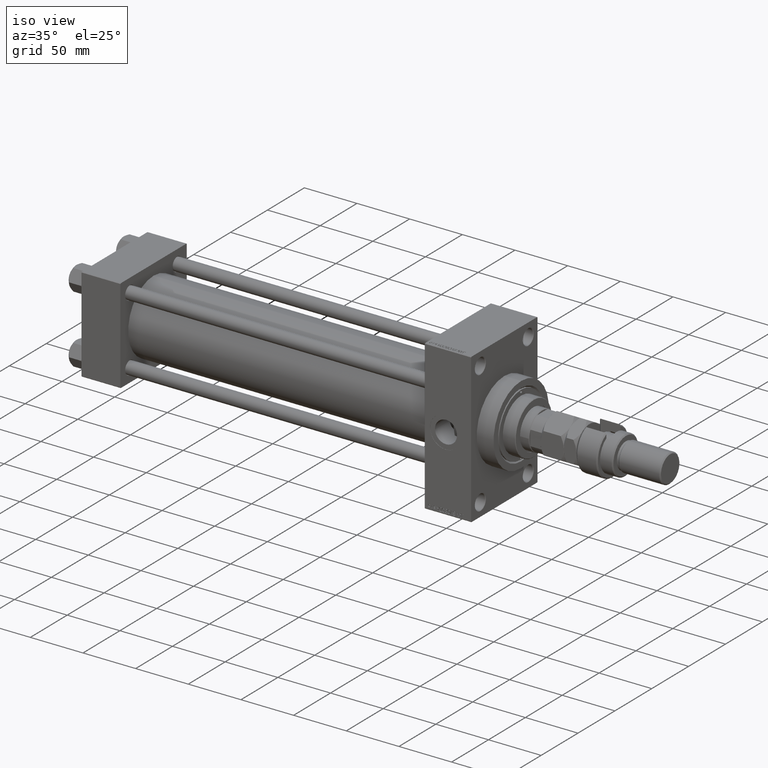
[diagram: clean part render]
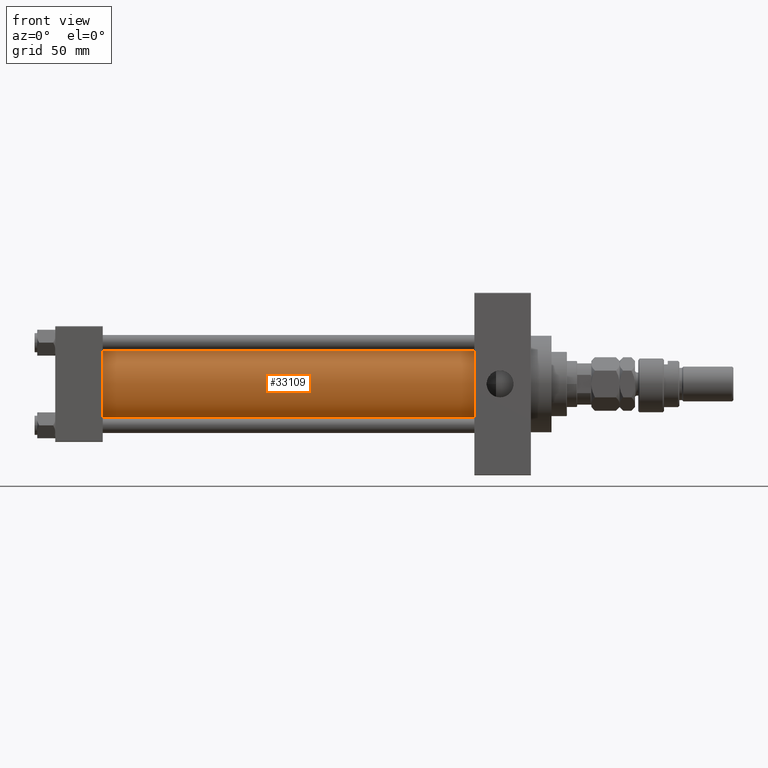
[diagram: tour spotlight — one face highlighted and labeled with its STEP entity id]
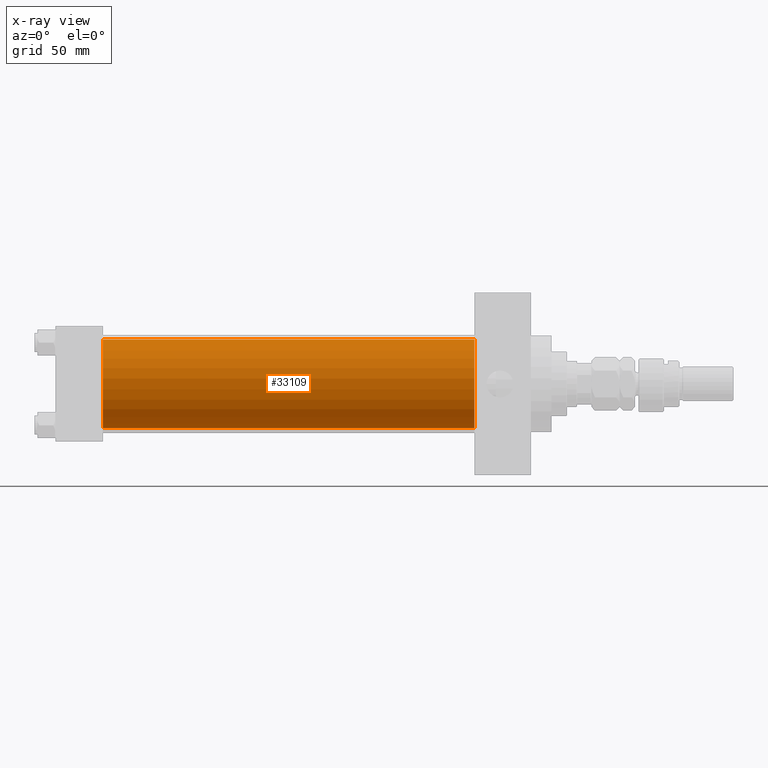
[diagram: x-ray of the same camera — body ghosted, this tour face saturated]
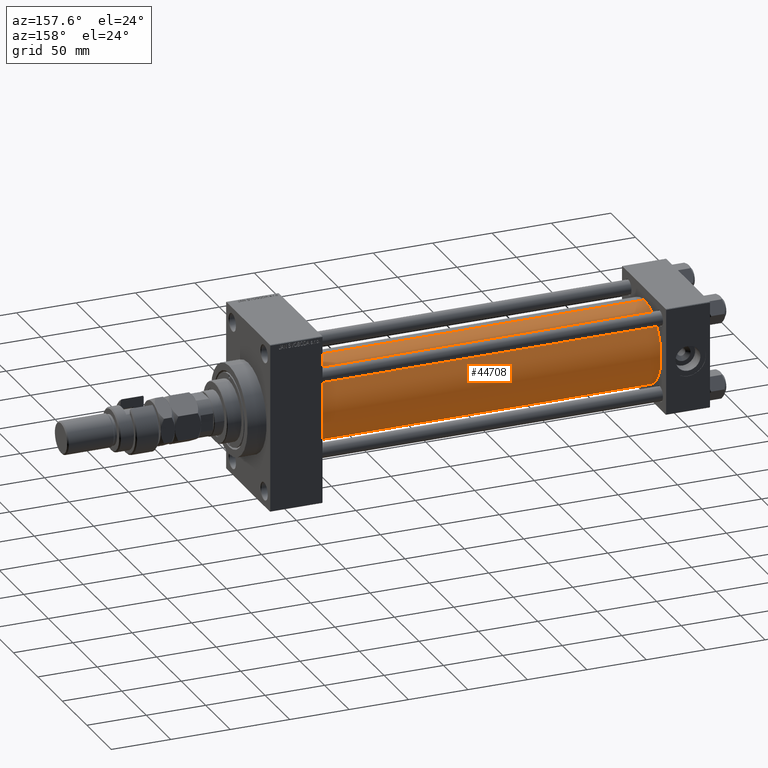
[diagram: tour spotlight — one face highlighted and labeled with its STEP entity id]
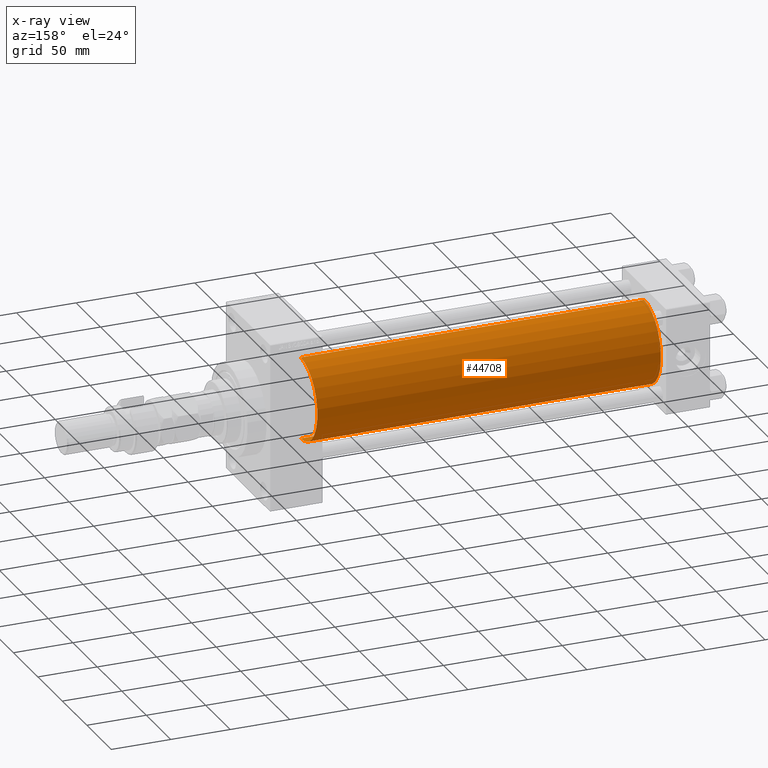
[diagram: x-ray of the same camera — body ghosted, this tour face saturated]
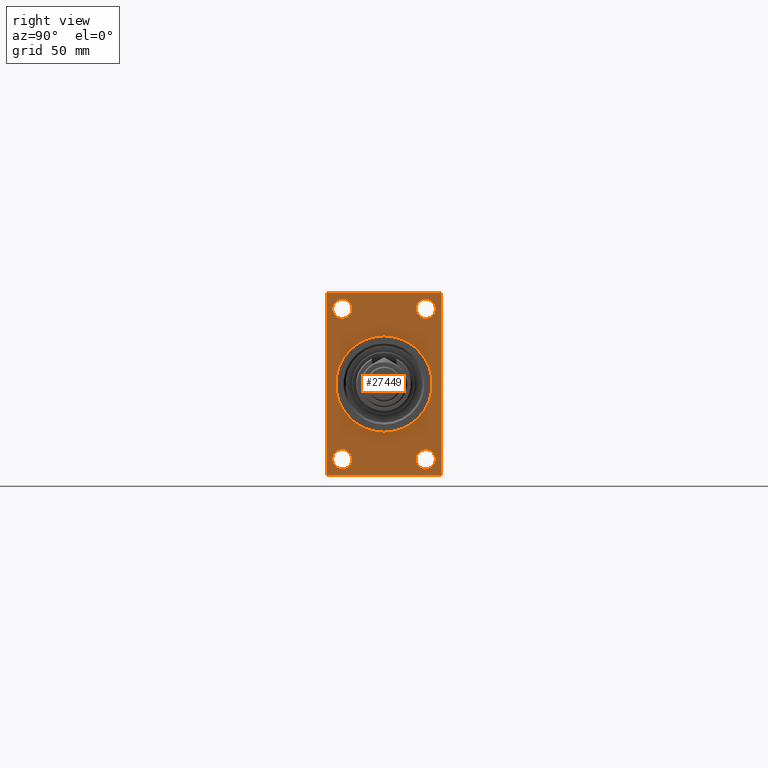
[diagram: tour spotlight — one face highlighted and labeled with its STEP entity id]
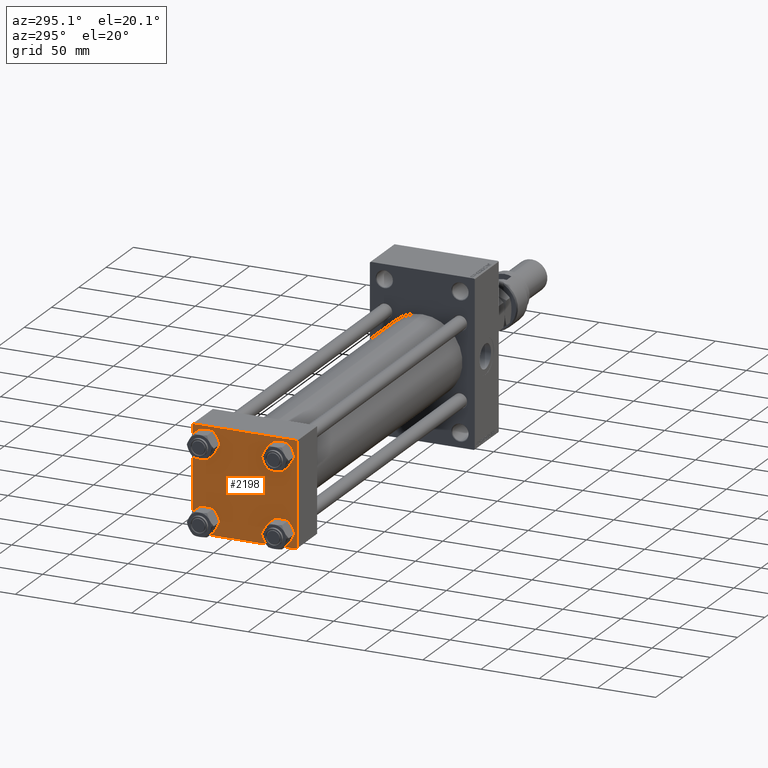
[diagram: tour spotlight — one face highlighted and labeled with its STEP entity id]
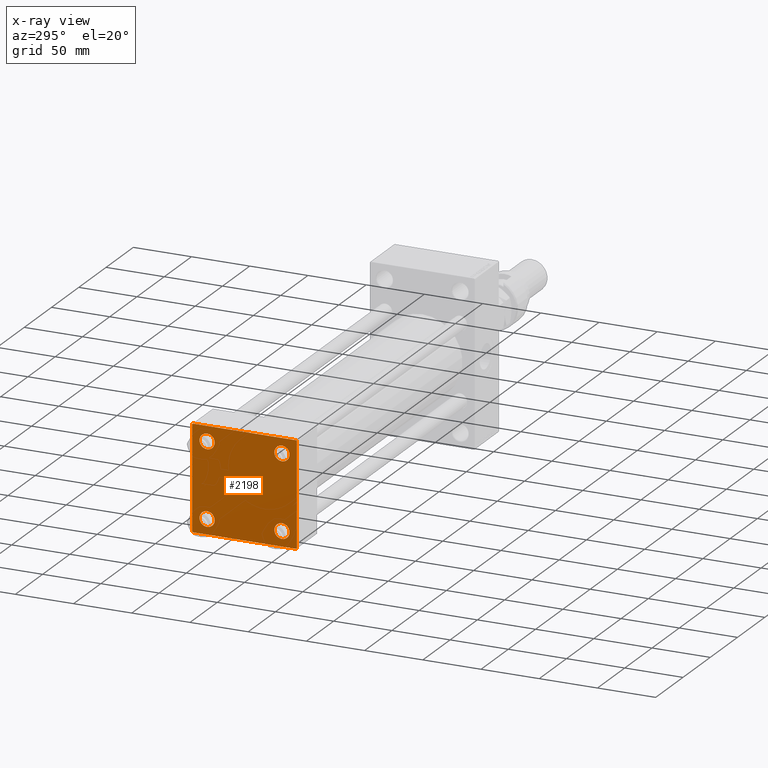
[diagram: x-ray of the same camera — body ghosted, this tour face saturated]
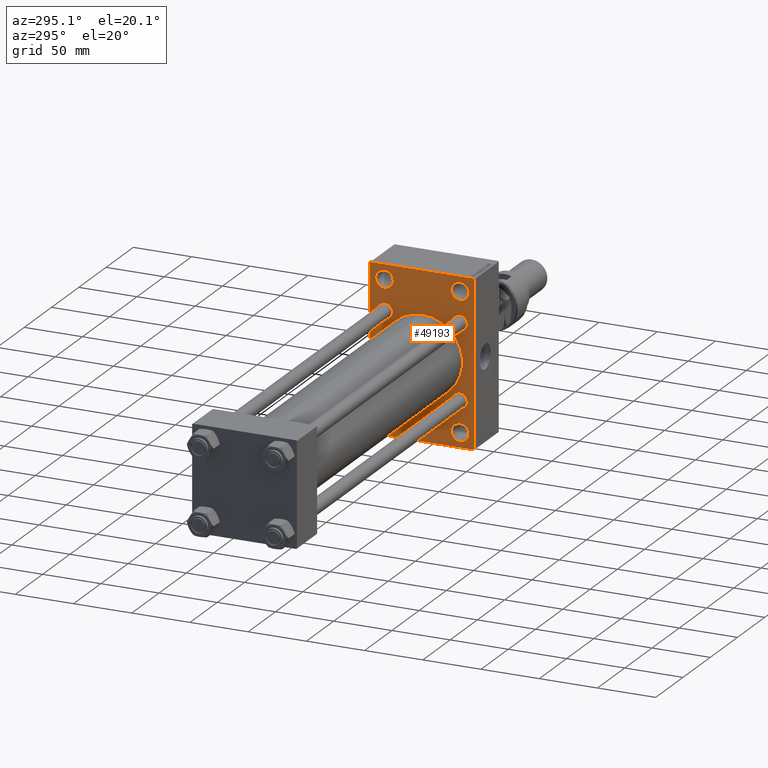
[diagram: tour spotlight — one face highlighted and labeled with its STEP entity id]
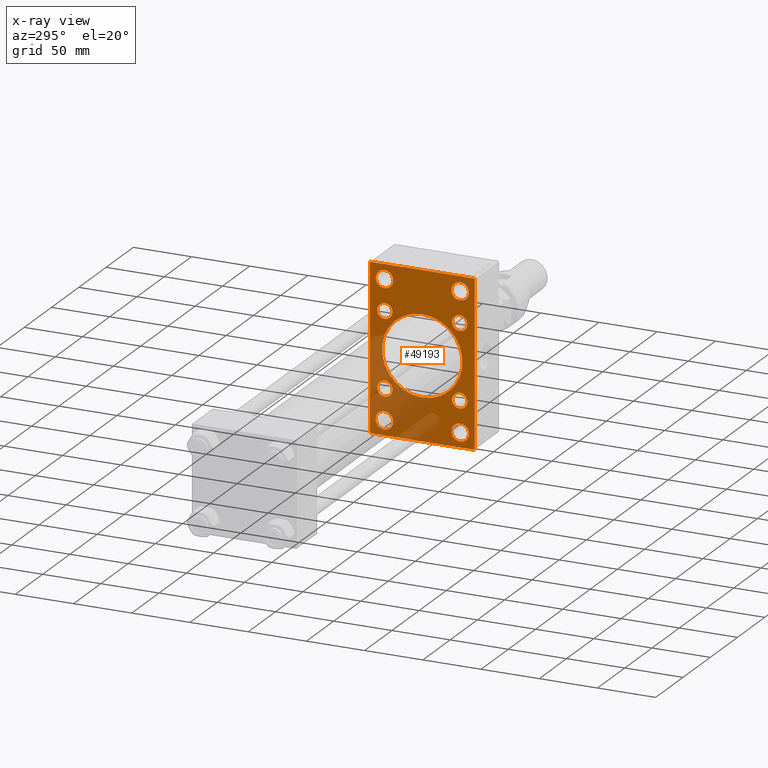
[diagram: x-ray of the same camera — body ghosted, this tour face saturated]
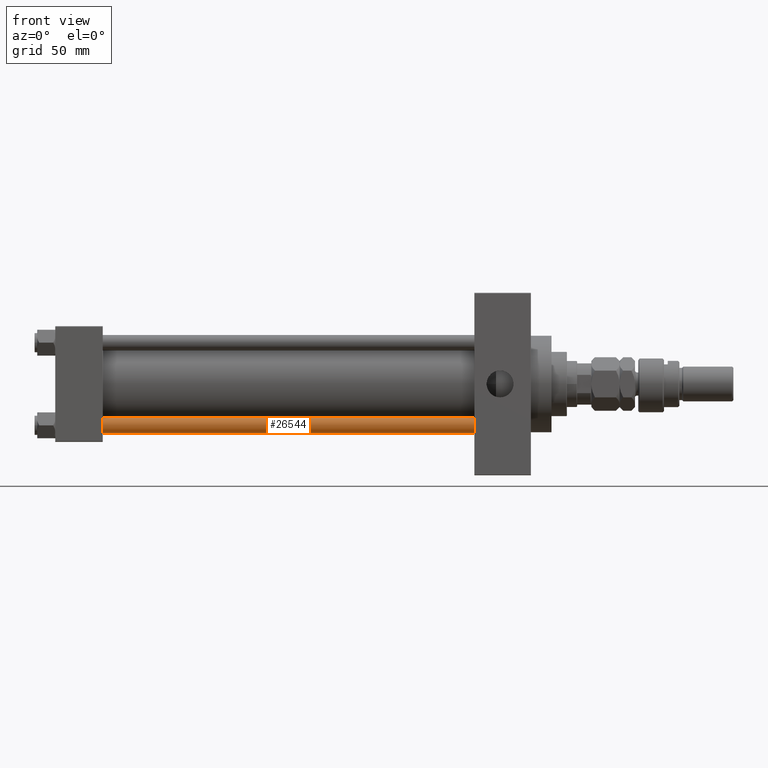
[diagram: tour spotlight — one face highlighted and labeled with its STEP entity id]
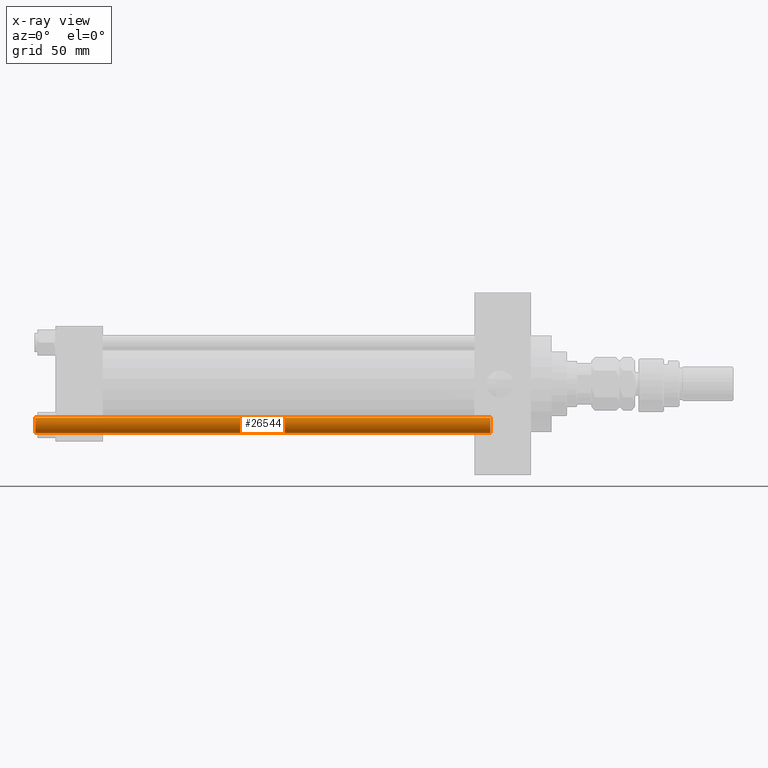
[diagram: x-ray of the same camera — body ghosted, this tour face saturated]
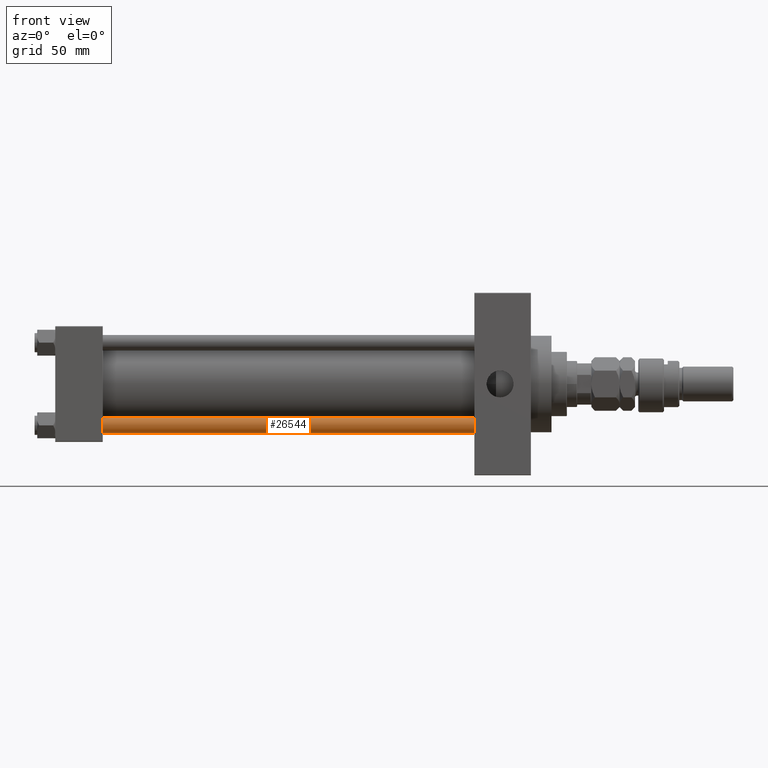
[diagram: tour spotlight — one face highlighted and labeled with its STEP entity id]
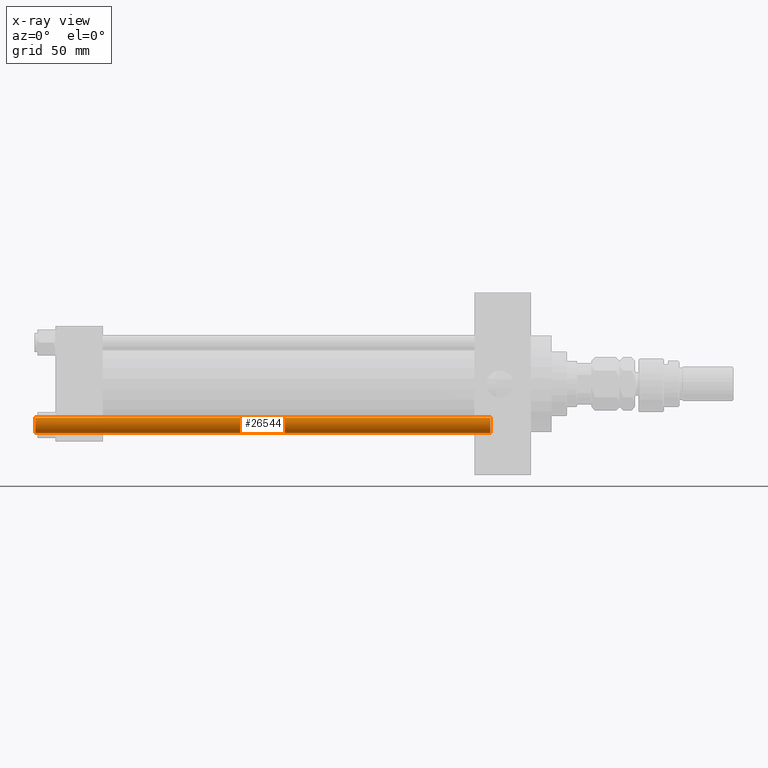
[diagram: x-ray of the same camera — body ghosted, this tour face saturated]
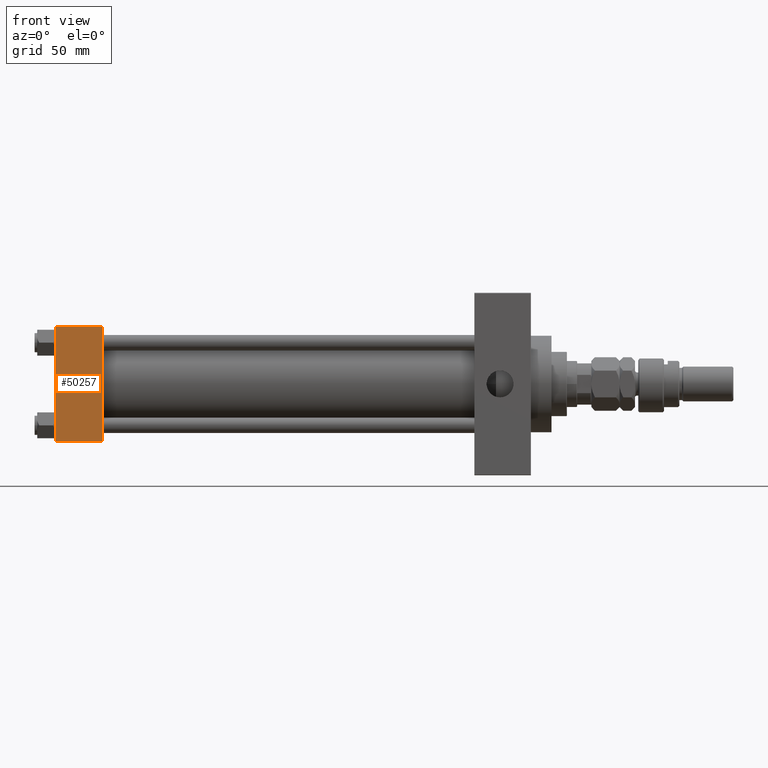
[diagram: tour spotlight — one face highlighted and labeled with its STEP entity id]
A machine part: a face-by-face anatomy tour. The part has 1197 B-rep faces; the first image is the clean iso view, then the 8 largest visible faces are spotlighted one at a time (largest first), each with its STEP entity span.

Face 1 — front view, entity #33109. An x-ray twin of the same camera follows (body ghosted, this face saturated) — the face is partly hidden behind the body. In plain terms, the highlighted cylindrical surface (partial cylindrical patch) has radius 34.5 mm, axis along (-1, -0, -0).
Definition (entity closure, byte-faithful):
#669 = AXIS2_PLACEMENT_3D ( 'NONE', #21679, #21929, #37420 ) ;
#2741 = VECTOR ( 'NONE', #45918, 1000.000000000000000 ) ;
#3698 = DIRECTION ( 'NONE',  ( 0.000000000000000000, 0.000000000000000000, -1.000000000000000000 ) ) ;
#3779 = VERTEX_POINT ( 'NONE', #48227 ) ;
#3892 = EDGE_CURVE ( 'NONE', #39507, #3779, #11317, .T. ) ;
#5715 = EDGE_CURVE ( 'NONE', #32194, #18465, #20625, .T. ) ;
#10916 = CARTESIAN_POINT ( 'NONE',  ( 325.9999999999999432, -2.602085213965210642E-15, 0.000000000000000000 ) ) ;
#11117 = AXIS2_PLACEMENT_3D ( 'NONE', #26103, #22793, #3698 ) ;
#11317 = LINE ( 'NONE', #14886, #2741 ) ;
#12094 = ORIENTED_EDGE ( 'NONE', *, *, #29823, .T. ) ;
#14735 = CYLINDRICAL_SURFACE ( 'NONE', #46982, 34.50000000000000000 ) ;
#14886 = CARTESIAN_POINT ( 'NONE',  ( 325.9999999999999432, -2.602085213965210642E-15, 34.50000000000000000 ) ) ;
#16836 = CIRCLE ( 'NONE', #11117, 34.50000000000000000 ) ;
#18318 = DIRECTION ( 'NONE',  ( 0.000000000000000000, 0.000000000000000000, 1.000000000000000000 ) ) ;
#18465 = VERTEX_POINT ( 'NONE', #23331 ) ;
#19195 = ORIENTED_EDGE ( 'NONE', *, *, #24433, .F. ) ;
#20625 = LINE ( 'NONE', #25184, #47527 ) ;
#21679 = CARTESIAN_POINT ( 'NONE',  ( 36.99999999999997868, -2.602085213965210642E-15, 0.000000000000000000 ) ) ;
#21929 = DIRECTION ( 'NONE',  ( 1.000000000000000000, -0.000000000000000000, 0.000000000000000000 ) ) ;
#22136 = FACE_OUTER_BOUND ( 'NONE', #41430, .T. ) ;
#22793 = DIRECTION ( 'NONE',  ( 1.000000000000000000, 0.000000000000000000, 0.000000000000000000 ) ) ;
#23331 = CARTESIAN_POINT ( 'NONE',  ( 36.99999999999997868, 1.622946243093158675E-15, -34.50000000000000000 ) ) ;
#24141 = CARTESIAN_POINT ( 'NONE',  ( 325.9999999999999432, -2.602085213965210642E-15, 34.50000000000000000 ) ) ;
#24433 = EDGE_CURVE ( 'NONE', #39507, #32194, #16836, .T. ) ;
#25184 = CARTESIAN_POINT ( 'NONE',  ( 325.9999999999999432, 1.622946243093158675E-15, -34.50000000000000000 ) ) ;
#26103 = CARTESIAN_POINT ( 'NONE',  ( 325.9999999999999432, -2.602085213965210642E-15, 0.000000000000000000 ) ) ;
#26454 = DIRECTION ( 'NONE',  ( -1.000000000000000000, -0.000000000000000000, -0.000000000000000000 ) ) ;
#29823 = EDGE_CURVE ( 'NONE', #3779, #18465, #44508, .T. ) ;
#32194 = VERTEX_POINT ( 'NONE', #40986 ) ;
#33109 = ADVANCED_FACE ( 'NONE', ( #22136 ), #14735, .T. ) ;
#34517 = ORIENTED_EDGE ( 'NONE', *, *, #3892, .T. ) ;
#37420 = DIRECTION ( 'NONE',  ( 0.000000000000000000, 0.000000000000000000, 1.000000000000000000 ) ) ;
#39507 = VERTEX_POINT ( 'NONE', #24141 ) ;
#40986 = CARTESIAN_POINT ( 'NONE',  ( 325.9999999999999432, 1.622946243093158675E-15, -34.50000000000000000 ) ) ;
#41430 = EDGE_LOOP ( 'NONE', ( #43465, #19195, #34517, #12094 ) ) ;
#43465 = ORIENTED_EDGE ( 'NONE', *, *, #5715, .F. ) ;
#44508 = CIRCLE ( 'NONE', #669, 34.50000000000000000 ) ;
#45918 = DIRECTION ( 'NONE',  ( -1.000000000000000000, -0.000000000000000000, -0.000000000000000000 ) ) ;
#46982 = AXIS2_PLACEMENT_3D ( 'NONE', #10916, #26454, #18318 ) ;
#47527 = VECTOR ( 'NONE', #48068, 1000.000000000000000 ) ;
#48068 = DIRECTION ( 'NONE',  ( -1.000000000000000000, -0.000000000000000000, -0.000000000000000000 ) ) ;
#48227 = CARTESIAN_POINT ( 'NONE',  ( 36.99999999999997868, -2.602085213965210642E-15, 34.50000000000000000 ) ) ;

Face 2 — auxiliary view, entity #44708. An x-ray twin of the same camera follows (body ghosted, this face saturated) — the face is partly hidden behind the body. In plain terms, the highlighted cylindrical surface (partial cylindrical patch) has radius 34.5 mm, axis along (-1, -0, -0).
Definition (entity closure, byte-faithful):
#883 = DIRECTION ( 'NONE',  ( 1.000000000000000000, -0.000000000000000000, 0.000000000000000000 ) ) ;
#1435 = ORIENTED_EDGE ( 'NONE', *, *, #3892, .F. ) ;
#1631 = ORIENTED_EDGE ( 'NONE', *, *, #30969, .T. ) ;
#2741 = VECTOR ( 'NONE', #45918, 1000.000000000000000 ) ;
#3779 = VERTEX_POINT ( 'NONE', #48227 ) ;
#3892 = EDGE_CURVE ( 'NONE', #39507, #3779, #11317, .T. ) ;
#5715 = EDGE_CURVE ( 'NONE', #32194, #18465, #20625, .T. ) ;
#6125 = DIRECTION ( 'NONE',  ( -1.000000000000000000, -0.000000000000000000, -0.000000000000000000 ) ) ;
#6349 = EDGE_CURVE ( 'NONE', #32194, #39507, #18461, .T. ) ;
#11317 = LINE ( 'NONE', #14886, #2741 ) ;
#13085 = ORIENTED_EDGE ( 'NONE', *, *, #6349, .F. ) ;
#13574 = AXIS2_PLACEMENT_3D ( 'NONE', #18942, #39265, #26818 ) ;
#14886 = CARTESIAN_POINT ( 'NONE',  ( 325.9999999999999432, -2.602085213965210642E-15, 34.50000000000000000 ) ) ;
#17605 = CYLINDRICAL_SURFACE ( 'NONE', #47391, 34.50000000000000000 ) ;
#18461 = CIRCLE ( 'NONE', #13574, 34.50000000000000000 ) ;
#18465 = VERTEX_POINT ( 'NONE', #23331 ) ;
#18942 = CARTESIAN_POINT ( 'NONE',  ( 325.9999999999999432, -2.602085213965210642E-15, 0.000000000000000000 ) ) ;
#20625 = LINE ( 'NONE', #25184, #47527 ) ;
#21673 = DIRECTION ( 'NONE',  ( 0.000000000000000000, 0.000000000000000000, 1.000000000000000000 ) ) ;
#21851 = EDGE_LOOP ( 'NONE', ( #13085, #43643, #1631, #1435 ) ) ;
#23331 = CARTESIAN_POINT ( 'NONE',  ( 36.99999999999997868, 1.622946243093158675E-15, -34.50000000000000000 ) ) ;
#24141 = CARTESIAN_POINT ( 'NONE',  ( 325.9999999999999432, -2.602085213965210642E-15, 34.50000000000000000 ) ) ;
#25184 = CARTESIAN_POINT ( 'NONE',  ( 325.9999999999999432, 1.622946243093158675E-15, -34.50000000000000000 ) ) ;
#25485 = CARTESIAN_POINT ( 'NONE',  ( 325.9999999999999432, -2.602085213965210642E-15, 0.000000000000000000 ) ) ;
#26711 = AXIS2_PLACEMENT_3D ( 'NONE', #32420, #883, #32166 ) ;
#26818 = DIRECTION ( 'NONE',  ( 0.000000000000000000, 0.000000000000000000, -1.000000000000000000 ) ) ;
#27526 = CIRCLE ( 'NONE', #26711, 34.50000000000000000 ) ;
#30969 = EDGE_CURVE ( 'NONE', #18465, #3779, #27526, .T. ) ;
#32166 = DIRECTION ( 'NONE',  ( 0.000000000000000000, 0.000000000000000000, 1.000000000000000000 ) ) ;
#32194 = VERTEX_POINT ( 'NONE', #40986 ) ;
#32420 = CARTESIAN_POINT ( 'NONE',  ( 36.99999999999997868, -2.602085213965210642E-15, 0.000000000000000000 ) ) ;
#36920 = FACE_OUTER_BOUND ( 'NONE', #21851, .T. ) ;
#39265 = DIRECTION ( 'NONE',  ( 1.000000000000000000, 0.000000000000000000, 0.000000000000000000 ) ) ;
#39507 = VERTEX_POINT ( 'NONE', #24141 ) ;
#40986 = CARTESIAN_POINT ( 'NONE',  ( 325.9999999999999432, 1.622946243093158675E-15, -34.50000000000000000 ) ) ;
#43643 = ORIENTED_EDGE ( 'NONE', *, *, #5715, .T. ) ;
#44708 = ADVANCED_FACE ( 'NONE', ( #36920 ), #17605, .T. ) ;
#45918 = DIRECTION ( 'NONE',  ( -1.000000000000000000, -0.000000000000000000, -0.000000000000000000 ) ) ;
#47391 = AXIS2_PLACEMENT_3D ( 'NONE', #25485, #6125, #21673 ) ;
#47527 = VECTOR ( 'NONE', #48068, 1000.000000000000000 ) ;
#48068 = DIRECTION ( 'NONE',  ( -1.000000000000000000, -0.000000000000000000, -0.000000000000000000 ) ) ;
#48227 = CARTESIAN_POINT ( 'NONE',  ( 36.99999999999997868, -2.602085213965210642E-15, 34.50000000000000000 ) ) ;

Face 3 — right view, entity #27449. In plain terms, the highlighted planar face has unit normal (-1, 0, 0).
Definition (entity closure, byte-faithful):
#432 = VECTOR ( 'NONE', #9370, 1000.000000000000000 ) ;
#468 = EDGE_LOOP ( 'NONE', ( #42037, #13075, #19508, #41129, #23852, #42154, #34729, #19842 ) ) ;
#1208 = EDGE_LOOP ( 'NONE', ( #29192, #35542 ) ) ;
#1623 = LINE ( 'NONE', #32654, #23330 ) ;
#1992 = CARTESIAN_POINT ( 'NONE',  ( 369.9999999999999432, 32.50000000000000711, 58.50000000000000711 ) ) ;
#2376 = DIRECTION ( 'NONE',  ( 0.000000000000000000, 0.000000000000000000, -1.000000000000000000 ) ) ;
#2903 = AXIS2_PLACEMENT_3D ( 'NONE', #43479, #23926, #48041 ) ;
#3333 = AXIS2_PLACEMENT_3D ( 'NONE', #1992, #36592, #13690 ) ;
#4339 = CARTESIAN_POINT ( 'NONE',  ( 369.9999999999999432, 32.50000000000000711, -50.99999999999993605 ) ) ;
#4690 = CIRCLE ( 'NONE', #31505, 7.500000000000062172 ) ;
#4947 = VERTEX_POINT ( 'NONE', #46356 ) ;
#5221 = CARTESIAN_POINT ( 'NONE',  ( 369.9999999999999432, 32.50000000000000711, -58.50000000000000000 ) ) ;
#6966 = EDGE_CURVE ( 'NONE', #39936, #37663, #4690, .T. ) ;
#8217 = EDGE_CURVE ( 'NONE', #25519, #28319, #39659, .T. ) ;
#8512 = DIRECTION ( 'NONE',  ( -1.000000000000000000, 0.000000000000000000, -0.000000000000000000 ) ) ;
#8583 = EDGE_LOOP ( 'NONE', ( #27892, #25590 ) ) ;
#9311 = LINE ( 'NONE', #48715, #19252 ) ;
#9370 = DIRECTION ( 'NONE',  ( -0.000000000000000000, -0.7071067811865426878, -0.7071067811865524577 ) ) ;
#10082 = VERTEX_POINT ( 'NONE', #44937 ) ;
#10280 = ORIENTED_EDGE ( 'NONE', *, *, #6966, .T. ) ;
#11016 = DIRECTION ( 'NONE',  ( -1.000000000000000000, 0.000000000000000000, -0.000000000000000000 ) ) ;
#11163 = CARTESIAN_POINT ( 'NONE',  ( 369.9999999999999432, -44.99999999999997158, 70.99999999999998579 ) ) ;
#11728 = VECTOR ( 'NONE', #40897, 1000.000000000000000 ) ;
#12210 = VERTEX_POINT ( 'NONE', #20694 ) ;
#12334 = FACE_BOUND ( 'NONE', #8583, .T. ) ;
#13075 = ORIENTED_EDGE ( 'NONE', *, *, #23510, .T. ) ;
#13191 = EDGE_CURVE ( 'NONE', #43073, #37398, #29945, .T. ) ;
#13194 = LINE ( 'NONE', #24170, #432 ) ;
#13257 = DIRECTION ( 'NONE',  ( 0.000000000000000000, 0.000000000000000000, 1.000000000000000000 ) ) ;
#13353 = DIRECTION ( 'NONE',  ( 0.000000000000000000, 0.000000000000000000, 1.000000000000000000 ) ) ;
#13690 = DIRECTION ( 'NONE',  ( 0.000000000000000000, 0.000000000000000000, 1.000000000000000000 ) ) ;
#13695 = VERTEX_POINT ( 'NONE', #29311 ) ;
#14011 = CARTESIAN_POINT ( 'NONE',  ( 369.9999999999999432, -44.49999999999994316, -71.00000000000000000 ) ) ;
#14196 = VERTEX_POINT ( 'NONE', #21519 ) ;
#14382 = ORIENTED_EDGE ( 'NONE', *, *, #43435, .T. ) ;
#14860 = DIRECTION ( 'NONE',  ( -1.000000000000000000, 0.000000000000000000, -0.000000000000000000 ) ) ;
#14869 = DIRECTION ( 'NONE',  ( -1.000000000000000000, 0.000000000000000000, -0.000000000000000000 ) ) ;
#15055 = EDGE_CURVE ( 'NONE', #25924, #23489, #17192, .T. ) ;
#15146 = FACE_BOUND ( 'NONE', #37772, .T. ) ;
#15518 = DIRECTION ( 'NONE',  ( 0.000000000000000000, -0.7071067811865867636, 0.7071067811865081598 ) ) ;
#15733 = CARTESIAN_POINT ( 'NONE',  ( 369.9999999999999432, 45.00000000000002132, 70.50000000000000000 ) ) ;
#15917 = VERTEX_POINT ( 'NONE', #33445 ) ;
#16093 = CARTESIAN_POINT ( 'NONE',  ( 369.9999999999999432, -32.50000000000000000, -58.49999999999999289 ) ) ;
#16110 = CIRCLE ( 'NONE', #36382, 7.500000000000062172 ) ;
#16169 = FACE_BOUND ( 'NONE', #37045, .T. ) ;
#17192 = CIRCLE ( 'NONE', #3333, 7.500000000000047962 ) ;
#18123 = CIRCLE ( 'NONE', #38425, 7.500000000000047962 ) ;
#18182 = DIRECTION ( 'NONE',  ( 0.000000000000000000, 0.000000000000000000, 1.000000000000000000 ) ) ;
#18417 = CARTESIAN_POINT ( 'NONE',  ( 369.9999999999999432, 0.000000000000000000, 0.000000000000000000 ) ) ;
#18555 = EDGE_CURVE ( 'NONE', #28319, #25519, #36284, .T. ) ;
#18800 = CARTESIAN_POINT ( 'NONE',  ( 369.9999999999999432, 45.00000000000001421, -70.49999999999991473 ) ) ;
#18909 = DIRECTION ( 'NONE',  ( -1.000000000000000000, 0.000000000000000000, -0.000000000000000000 ) ) ;
#19029 = ORIENTED_EDGE ( 'NONE', *, *, #22950, .T. ) ;
#19209 = EDGE_CURVE ( 'NONE', #4947, #12210, #50112, .T. ) ;
#19252 = VECTOR ( 'NONE', #32467, 1000.000000000000114 ) ;
#19318 = ORIENTED_EDGE ( 'NONE', *, *, #20584, .T. ) ;
#19326 = LINE ( 'NONE', #11163, #24706 ) ;
#19494 = CARTESIAN_POINT ( 'NONE',  ( 369.9999999999999432, 0.000000000000000000, 0.000000000000000000 ) ) ;
#19508 = ORIENTED_EDGE ( 'NONE', *, *, #13191, .F. ) ;
#19842 = ORIENTED_EDGE ( 'NONE', *, *, #20965, .T. ) ;
#20328 = CIRCLE ( 'NONE', #44648, 7.500000000000047962 ) ;
#20584 = EDGE_CURVE ( 'NONE', #12210, #4947, #48636, .T. ) ;
#20694 = CARTESIAN_POINT ( 'NONE',  ( 369.9999999999999432, -32.50000000000000000, -50.99999999999992895 ) ) ;
#20965 = EDGE_CURVE ( 'NONE', #14196, #49807, #13194, .T. ) ;
#20984 = DIRECTION ( 'NONE',  ( 0.000000000000000000, -1.000000000000000000, -1.541976423090495387E-16 ) ) ;
#21519 = CARTESIAN_POINT ( 'NONE',  ( 369.9999999999999432, -44.49999999999983658, 70.99999999999998579 ) ) ;
#21544 = CARTESIAN_POINT ( 'NONE',  ( 369.9999999999999432, 0.000000000000000000, 37.50000000000000711 ) ) ;
#21571 = DIRECTION ( 'NONE',  ( 0.000000000000000000, -1.000000000000000000, -1.541976423090495633E-16 ) ) ;
#21599 = CARTESIAN_POINT ( 'NONE',  ( 369.9999999999999432, 0.000000000000000000, 0.000000000000000000 ) ) ;
#21782 = CARTESIAN_POINT ( 'NONE',  ( 369.9999999999999432, 32.50000000000000711, 50.99999999999996447 ) ) ;
#22860 = EDGE_CURVE ( 'NONE', #41756, #13695, #41712, .T. ) ;
#22950 = EDGE_CURVE ( 'NONE', #10082, #37386, #41914, .T. ) ;
#23330 = VECTOR ( 'NONE', #20984, 1000.000000000000000 ) ;
#23489 = VERTEX_POINT ( 'NONE', #48963 ) ;
#23510 = EDGE_CURVE ( 'NONE', #15917, #37398, #9311, .T. ) ;
#23746 = VECTOR ( 'NONE', #21571, 1000.000000000000000 ) ;
#23852 = ORIENTED_EDGE ( 'NONE', *, *, #50011, .F. ) ;
#23894 = CARTESIAN_POINT ( 'NONE',  ( 369.9999999999999432, 45.00000000000001421, -70.49999999999991473 ) ) ;
#23926 = DIRECTION ( 'NONE',  ( -1.000000000000000000, 0.000000000000000000, -0.000000000000000000 ) ) ;
#24170 = CARTESIAN_POINT ( 'NONE',  ( 369.9999999999999432, -44.99999999999997158, 70.49999999999987210 ) ) ;
#24335 = ORIENTED_EDGE ( 'NONE', *, *, #19209, .T. ) ;
#24417 = VECTOR ( 'NONE', #45749, 999.9999999999998863 ) ;
#24661 = EDGE_CURVE ( 'NONE', #13695, #14196, #1623, .T. ) ;
#24706 = VECTOR ( 'NONE', #42709, 1000.000000000000000 ) ;
#25156 = CARTESIAN_POINT ( 'NONE',  ( 369.9999999999999432, 45.00000000000002132, 71.00000000000000000 ) ) ;
#25519 = VERTEX_POINT ( 'NONE', #33830 ) ;
#25590 = ORIENTED_EDGE ( 'NONE', *, *, #36622, .T. ) ;
#25924 = VERTEX_POINT ( 'NONE', #21782 ) ;
#26149 = CARTESIAN_POINT ( 'NONE',  ( 369.9999999999999432, 45.00000000000001421, -70.99999999999998579 ) ) ;
#26737 = AXIS2_PLACEMENT_3D ( 'NONE', #16093, #18909, #35163 ) ;
#27134 = CARTESIAN_POINT ( 'NONE',  ( 369.9999999999999432, 44.49999999999990052, -70.99999999999998579 ) ) ;
#27327 = CARTESIAN_POINT ( 'NONE',  ( 369.9999999999999432, 32.50000000000000711, -66.00000000000005684 ) ) ;
#27449 = ADVANCED_FACE ( 'NONE', ( #15146, #16169, #47193, #12334, #27624, #42355 ), #27867, .F. ) ;
#27624 = FACE_BOUND ( 'NONE', #1208, .T. ) ;
#27867 = PLANE ( 'NONE',  #40381 ) ;
#27892 = ORIENTED_EDGE ( 'NONE', *, *, #15055, .T. ) ;
#28319 = VERTEX_POINT ( 'NONE', #21544 ) ;
#29192 = ORIENTED_EDGE ( 'NONE', *, *, #18555, .F. ) ;
#29311 = CARTESIAN_POINT ( 'NONE',  ( 369.9999999999999432, 44.49999999999996447, 71.00000000000000000 ) ) ;
#29945 = LINE ( 'NONE', #26149, #23746 ) ;
#30612 = DIRECTION ( 'NONE',  ( 0.000000000000000000, 0.000000000000000000, 1.000000000000000000 ) ) ;
#31398 = DIRECTION ( 'NONE',  ( 0.000000000000000000, 0.000000000000000000, 1.000000000000000000 ) ) ;
#31505 = AXIS2_PLACEMENT_3D ( 'NONE', #45376, #14860, #18182 ) ;
#31939 = DIRECTION ( 'NONE',  ( -1.000000000000000000, 0.000000000000000000, -0.000000000000000000 ) ) ;
#32467 = DIRECTION ( 'NONE',  ( 0.000000000000000000, 0.7071067811865965336, -0.7071067811864985009 ) ) ;
#32611 = EDGE_CURVE ( 'NONE', #37663, #39936, #16110, .T. ) ;
#32654 = CARTESIAN_POINT ( 'NONE',  ( 369.9999999999999432, 45.00000000000002132, 71.00000000000000000 ) ) ;
#32786 = DIRECTION ( 'NONE',  ( 1.000000000000000000, 0.000000000000000000, 0.000000000000000000 ) ) ;
#33445 = CARTESIAN_POINT ( 'NONE',  ( 369.9999999999999432, -44.99999999999997158, -70.50000000000005684 ) ) ;
#33830 = CARTESIAN_POINT ( 'NONE',  ( 369.9999999999999432, 4.592425496802575156E-15, -37.50000000000000711 ) ) ;
#33917 = DIRECTION ( 'NONE',  ( 1.000000000000000000, 0.000000000000000000, 0.000000000000000000 ) ) ;
#34225 = ORIENTED_EDGE ( 'NONE', *, *, #32611, .T. ) ;
#34729 = ORIENTED_EDGE ( 'NONE', *, *, #24661, .T. ) ;
#35163 = DIRECTION ( 'NONE',  ( 0.000000000000000000, 0.000000000000000000, 1.000000000000000000 ) ) ;
#35211 = CARTESIAN_POINT ( 'NONE',  ( 369.9999999999999432, -32.50000000000000000, -58.49999999999999289 ) ) ;
#35542 = ORIENTED_EDGE ( 'NONE', *, *, #8217, .F. ) ;
#35726 = DIRECTION ( 'NONE',  ( -0.000000000000000000, 0.000000000000000000, 1.000000000000000000 ) ) ;
#36284 = CIRCLE ( 'NONE', #43619, 37.50000000000000711 ) ;
#36382 = AXIS2_PLACEMENT_3D ( 'NONE', #5221, #31939, #13353 ) ;
#36592 = DIRECTION ( 'NONE',  ( -1.000000000000000000, 0.000000000000000000, -0.000000000000000000 ) ) ;
#36622 = EDGE_CURVE ( 'NONE', #23489, #25924, #20328, .T. ) ;
#37045 = EDGE_LOOP ( 'NONE', ( #24335, #19318 ) ) ;
#37386 = VERTEX_POINT ( 'NONE', #40230 ) ;
#37398 = VERTEX_POINT ( 'NONE', #14011 ) ;
#37663 = VERTEX_POINT ( 'NONE', #4339 ) ;
#37772 = EDGE_LOOP ( 'NONE', ( #14382, #19029 ) ) ;
#37832 = EDGE_CURVE ( 'NONE', #43073, #38028, #41161, .T. ) ;
#38028 = VERTEX_POINT ( 'NONE', #23894 ) ;
#38355 = EDGE_LOOP ( 'NONE', ( #10280, #34225 ) ) ;
#38425 = AXIS2_PLACEMENT_3D ( 'NONE', #46649, #11016, #30612 ) ;
#39659 = CIRCLE ( 'NONE', #46164, 37.50000000000000711 ) ;
#39936 = VERTEX_POINT ( 'NONE', #27327 ) ;
#40230 = CARTESIAN_POINT ( 'NONE',  ( 369.9999999999999432, -32.50000000000000000, 50.99999999999996447 ) ) ;
#40381 = AXIS2_PLACEMENT_3D ( 'NONE', #19494, #8512, #35726 ) ;
#40418 = DIRECTION ( 'NONE',  ( 0.000000000000000000, 0.000000000000000000, -1.000000000000000000 ) ) ;
#40897 = DIRECTION ( 'NONE',  ( 0.000000000000000000, -4.886545002751570165E-17, -1.000000000000000000 ) ) ;
#41129 = ORIENTED_EDGE ( 'NONE', *, *, #37832, .T. ) ;
#41161 = LINE ( 'NONE', #18800, #24417 ) ;
#41712 = LINE ( 'NONE', #45783, #45130 ) ;
#41756 = VERTEX_POINT ( 'NONE', #15733 ) ;
#41914 = CIRCLE ( 'NONE', #2903, 7.500000000000047962 ) ;
#42037 = ORIENTED_EDGE ( 'NONE', *, *, #48074, .T. ) ;
#42154 = ORIENTED_EDGE ( 'NONE', *, *, #22860, .T. ) ;
#42355 = FACE_OUTER_BOUND ( 'NONE', #468, .T. ) ;
#42709 = DIRECTION ( 'NONE',  ( 0.000000000000000000, 0.000000000000000000, -1.000000000000000000 ) ) ;
#43073 = VERTEX_POINT ( 'NONE', #27134 ) ;
#43435 = EDGE_CURVE ( 'NONE', #37386, #10082, #18123, .T. ) ;
#43479 = CARTESIAN_POINT ( 'NONE',  ( 369.9999999999999432, -32.50000000000000000, 58.50000000000000711 ) ) ;
#43619 = AXIS2_PLACEMENT_3D ( 'NONE', #18417, #33917, #2376 ) ;
#44336 = CARTESIAN_POINT ( 'NONE',  ( 369.9999999999999432, -44.99999999999997158, 70.49999999999987210 ) ) ;
#44648 = AXIS2_PLACEMENT_3D ( 'NONE', #44772, #48111, #13257 ) ;
#44705 = LINE ( 'NONE', #25156, #11728 ) ;
#44772 = CARTESIAN_POINT ( 'NONE',  ( 369.9999999999999432, 32.50000000000000711, 58.50000000000000711 ) ) ;
#44937 = CARTESIAN_POINT ( 'NONE',  ( 369.9999999999999432, -32.50000000000000000, 66.00000000000005684 ) ) ;
#45130 = VECTOR ( 'NONE', #15518, 1000.000000000000000 ) ;
#45376 = CARTESIAN_POINT ( 'NONE',  ( 369.9999999999999432, 32.50000000000000711, -58.50000000000000000 ) ) ;
#45749 = DIRECTION ( 'NONE',  ( -0.000000000000000000, 0.7071067811865771047, 0.7071067811865180408 ) ) ;
#45783 = CARTESIAN_POINT ( 'NONE',  ( 369.9999999999999432, 44.49999999999996447, 71.00000000000000000 ) ) ;
#46164 = AXIS2_PLACEMENT_3D ( 'NONE', #21599, #32786, #40418 ) ;
#46356 = CARTESIAN_POINT ( 'NONE',  ( 369.9999999999999432, -32.50000000000000000, -66.00000000000004263 ) ) ;
#46649 = CARTESIAN_POINT ( 'NONE',  ( 369.9999999999999432, -32.50000000000000000, 58.50000000000000711 ) ) ;
#47193 = FACE_BOUND ( 'NONE', #38355, .T. ) ;
#48041 = DIRECTION ( 'NONE',  ( 0.000000000000000000, 0.000000000000000000, 1.000000000000000000 ) ) ;
#48074 = EDGE_CURVE ( 'NONE', #49807, #15917, #19326, .T. ) ;
#48111 = DIRECTION ( 'NONE',  ( -1.000000000000000000, 0.000000000000000000, -0.000000000000000000 ) ) ;
#48636 = CIRCLE ( 'NONE', #26737, 7.500000000000055067 ) ;
#48715 = CARTESIAN_POINT ( 'NONE',  ( 369.9999999999999432, -44.49999999999997158, -71.00000000000000000 ) ) ;
#48963 = CARTESIAN_POINT ( 'NONE',  ( 369.9999999999999432, 32.50000000000000711, 66.00000000000005684 ) ) ;
#49309 = AXIS2_PLACEMENT_3D ( 'NONE', #35211, #14869, #31398 ) ;
#49807 = VERTEX_POINT ( 'NONE', #44336 ) ;
#50011 = EDGE_CURVE ( 'NONE', #41756, #38028, #44705, .T. ) ;
#50112 = CIRCLE ( 'NONE', #49309, 7.500000000000055067 ) ;

Face 4 — auxiliary view, entity #2198. An x-ray twin of the same camera follows (body ghosted, this face saturated) — the face is partly hidden behind the body. In plain terms, the highlighted planar face has unit normal (-1, 0, 0).
Definition (entity closure, byte-faithful):
#113 = ORIENTED_EDGE ( 'NONE', *, *, #4135, .T. ) ;
#123 = CARTESIAN_POINT ( 'NONE',  ( 0.000000000000000000, -45.00000000000000711, 45.00000000000000000 ) ) ;
#1042 = FACE_BOUND ( 'NONE', #34803, .T. ) ;
#1877 = AXIS2_PLACEMENT_3D ( 'NONE', #24962, #16577, #48096 ) ;
#2198 = ADVANCED_FACE ( 'NONE', ( #24717, #43531, #5351, #1042, #23979 ), #17079, .T. ) ;
#2231 = DIRECTION ( 'NONE',  ( 0.000000000000000000, 0.000000000000000000, -1.000000000000000000 ) ) ;
#2584 = CIRCLE ( 'NONE', #14066, 6.499999999999977796 ) ;
#2662 = AXIS2_PLACEMENT_3D ( 'NONE', #40944, #37120, #17813 ) ;
#2698 = LINE ( 'NONE', #49240, #13544 ) ;
#2767 = CARTESIAN_POINT ( 'NONE',  ( 0.000000000000000000, 32.14999999999999147, 32.15000000000000568 ) ) ;
#3728 = AXIS2_PLACEMENT_3D ( 'NONE', #41212, #18089, #22160 ) ;
#4135 = EDGE_CURVE ( 'NONE', #47264, #27695, #48254, .T. ) ;
#4727 = VERTEX_POINT ( 'NONE', #11326 ) ;
#4969 = AXIS2_PLACEMENT_3D ( 'NONE', #8689, #35662, #5618 ) ;
#5351 = FACE_BOUND ( 'NONE', #36056, .T. ) ;
#5618 = DIRECTION ( 'NONE',  ( 0.000000000000000000, 0.000000000000000000, 1.000000000000000000 ) ) ;
#5633 = DIRECTION ( 'NONE',  ( 1.000000000000000000, -0.000000000000000000, 0.000000000000000000 ) ) ;
#5768 = DIRECTION ( 'NONE',  ( 0.000000000000000000, 0.000000000000000000, 1.000000000000000000 ) ) ;
#6424 = CARTESIAN_POINT ( 'NONE',  ( 0.000000000000000000, -32.14999999999997726, 38.65000000000003411 ) ) ;
#7671 = ORIENTED_EDGE ( 'NONE', *, *, #40473, .T. ) ;
#8689 = CARTESIAN_POINT ( 'NONE',  ( 0.000000000000000000, -32.14999999999997726, -32.15000000000001279 ) ) ;
#8769 = LINE ( 'NONE', #16183, #42483 ) ;
#8784 = ORIENTED_EDGE ( 'NONE', *, *, #21638, .T. ) ;
#9065 = AXIS2_PLACEMENT_3D ( 'NONE', #10597, #14671, #23093 ) ;
#9213 = CARTESIAN_POINT ( 'NONE',  ( 0.000000000000000000, 32.14999999999999147, -32.15000000000000568 ) ) ;
#10320 = EDGE_CURVE ( 'NONE', #4727, #12395, #27181, .T. ) ;
#10399 = EDGE_LOOP ( 'NONE', ( #11187, #113 ) ) ;
#10453 = CARTESIAN_POINT ( 'NONE',  ( 0.000000000000000000, -44.49999999999995737, -45.00000000000000000 ) ) ;
#10597 = CARTESIAN_POINT ( 'NONE',  ( 0.000000000000000000, -32.14999999999997726, -32.15000000000001279 ) ) ;
#10621 = VECTOR ( 'NONE', #32246, 1000.000000000000114 ) ;
#11187 = ORIENTED_EDGE ( 'NONE', *, *, #39630, .T. ) ;
#11326 = CARTESIAN_POINT ( 'NONE',  ( 0.000000000000000000, 44.99999999999998579, -44.49999999999995737 ) ) ;
#11384 = LINE ( 'NONE', #19813, #33041 ) ;
#11639 = DIRECTION ( 'NONE',  ( 0.000000000000000000, -0.7071067811865474617, 0.7071067811865474617 ) ) ;
#12395 = VERTEX_POINT ( 'NONE', #34118 ) ;
#12576 = EDGE_CURVE ( 'NONE', #14143, #16314, #45603, .T. ) ;
#12771 = CARTESIAN_POINT ( 'NONE',  ( 0.000000000000000000, 44.49999999999998579, 45.00000000000001421 ) ) ;
#12916 = VERTEX_POINT ( 'NONE', #43641 ) ;
#12960 = ORIENTED_EDGE ( 'NONE', *, *, #10320, .T. ) ;
#13160 = CARTESIAN_POINT ( 'NONE',  ( 0.000000000000000000, -32.14999999999997726, 32.15000000000001279 ) ) ;
#13544 = VECTOR ( 'NONE', #26124, 1000.000000000000000 ) ;
#14066 = AXIS2_PLACEMENT_3D ( 'NONE', #9213, #5633, #48861 ) ;
#14143 = VERTEX_POINT ( 'NONE', #21037 ) ;
#14671 = DIRECTION ( 'NONE',  ( 1.000000000000000000, -0.000000000000000000, 0.000000000000000000 ) ) ;
#15641 = EDGE_CURVE ( 'NONE', #12916, #42534, #26919, .T. ) ;
#16183 = CARTESIAN_POINT ( 'NONE',  ( -0.000000000000000000, -44.75000000000029843, 44.74999999999967315 ) ) ;
#16287 = ORIENTED_EDGE ( 'NONE', *, *, #18219, .T. ) ;
#16314 = VERTEX_POINT ( 'NONE', #31848 ) ;
#16401 = LINE ( 'NONE', #123, #34826 ) ;
#16577 = DIRECTION ( 'NONE',  ( -1.000000000000000000, 0.000000000000000000, -0.000000000000000000 ) ) ;
#16857 = ORIENTED_EDGE ( 'NONE', *, *, #34603, .F. ) ;
#17075 = ORIENTED_EDGE ( 'NONE', *, *, #44615, .T. ) ;
#17079 = PLANE ( 'NONE',  #1877 ) ;
#17193 = AXIS2_PLACEMENT_3D ( 'NONE', #2767, #30251, #41937 ) ;
#17578 = CARTESIAN_POINT ( 'NONE',  ( 0.000000000000000000, -45.00000000000000000, -44.49999999999995737 ) ) ;
#17813 = DIRECTION ( 'NONE',  ( 0.000000000000000000, 0.000000000000000000, 1.000000000000000000 ) ) ;
#17861 = ORIENTED_EDGE ( 'NONE', *, *, #12576, .T. ) ;
#18089 = DIRECTION ( 'NONE',  ( 1.000000000000000000, -0.000000000000000000, 0.000000000000000000 ) ) ;
#18219 = EDGE_CURVE ( 'NONE', #12395, #28882, #2698, .T. ) ;
#18802 = VERTEX_POINT ( 'NONE', #17578 ) ;
#19446 = LINE ( 'NONE', #34938, #40515 ) ;
#19813 = CARTESIAN_POINT ( 'NONE',  ( 0.000000000000000000, -44.74999999999998579, -44.74999999999998579 ) ) ;
#20112 = ORIENTED_EDGE ( 'NONE', *, *, #15641, .T. ) ;
#21037 = CARTESIAN_POINT ( 'NONE',  ( 0.000000000000000000, 32.14999999999999147, 25.65000000000002700 ) ) ;
#21076 = EDGE_CURVE ( 'NONE', #47632, #4727, #44711, .T. ) ;
#21120 = CARTESIAN_POINT ( 'NONE',  ( 0.000000000000000000, -32.14999999999997726, -25.65000000000003411 ) ) ;
#21638 = EDGE_CURVE ( 'NONE', #16314, #14143, #28892, .T. ) ;
#22048 = CIRCLE ( 'NONE', #26081, 6.500000000000019540 ) ;
#22160 = DIRECTION ( 'NONE',  ( 0.000000000000000000, 0.000000000000000000, 1.000000000000000000 ) ) ;
#22421 = VERTEX_POINT ( 'NONE', #44335 ) ;
#23093 = DIRECTION ( 'NONE',  ( 0.000000000000000000, 0.000000000000000000, 1.000000000000000000 ) ) ;
#23205 = CARTESIAN_POINT ( 'NONE',  ( 0.000000000000000000, -44.49999999999995737, 45.00000000000000000 ) ) ;
#23377 = DIRECTION ( 'NONE',  ( -0.000000000000000000, -0.7071067811865474617, -0.7071067811865474617 ) ) ;
#23979 = FACE_OUTER_BOUND ( 'NONE', #46072, .T. ) ;
#24038 = ORIENTED_EDGE ( 'NONE', *, *, #32066, .F. ) ;
#24315 = DIRECTION ( 'NONE',  ( -0.000000000000000000, 0.7071067811865425767, 0.7071067811865524577 ) ) ;
#24717 = FACE_BOUND ( 'NONE', #10399, .T. ) ;
#24962 = CARTESIAN_POINT ( 'NONE',  ( 0.000000000000000000, 0.000000000000000000, 0.000000000000000000 ) ) ;
#25064 = EDGE_CURVE ( 'NONE', #28882, #18802, #11384, .T. ) ;
#26081 = AXIS2_PLACEMENT_3D ( 'NONE', #13160, #47762, #5768 ) ;
#26124 = DIRECTION ( 'NONE',  ( 0.000000000000000000, -1.000000000000000000, -1.541976423090495633E-16 ) ) ;
#26676 = EDGE_LOOP ( 'NONE', ( #7671, #20112 ) ) ;
#26919 = CIRCLE ( 'NONE', #4969, 6.499999999999977796 ) ;
#27181 = LINE ( 'NONE', #27433, #36499 ) ;
#27433 = CARTESIAN_POINT ( 'NONE',  ( 0.000000000000000000, 44.74999999999998579, -44.74999999999998579 ) ) ;
#27695 = VERTEX_POINT ( 'NONE', #6424 ) ;
#27994 = ORIENTED_EDGE ( 'NONE', *, *, #25064, .T. ) ;
#28882 = VERTEX_POINT ( 'NONE', #10453 ) ;
#28892 = CIRCLE ( 'NONE', #3728, 6.499999999999977796 ) ;
#29080 = CARTESIAN_POINT ( 'NONE',  ( 0.000000000000000000, -32.14999999999997726, 32.15000000000001279 ) ) ;
#29930 = VERTEX_POINT ( 'NONE', #35389 ) ;
#30251 = DIRECTION ( 'NONE',  ( 1.000000000000000000, -0.000000000000000000, 0.000000000000000000 ) ) ;
#31848 = CARTESIAN_POINT ( 'NONE',  ( 0.000000000000000000, 32.14999999999999147, 38.64999999999999147 ) ) ;
#31900 = DIRECTION ( 'NONE',  ( 0.000000000000000000, 7.709882115452476934E-17, -1.000000000000000000 ) ) ;
#32066 = EDGE_CURVE ( 'NONE', #38375, #44790, #19446, .T. ) ;
#32246 = DIRECTION ( 'NONE',  ( 0.000000000000000000, 0.7071067811865474617, -0.7071067811865474617 ) ) ;
#32986 = CARTESIAN_POINT ( 'NONE',  ( 0.000000000000000000, 44.74999999999999289, 44.74999999999999289 ) ) ;
#33041 = VECTOR ( 'NONE', #11639, 1000.000000000000114 ) ;
#33638 = CARTESIAN_POINT ( 'NONE',  ( 0.000000000000000000, 32.14999999999999147, -38.64999999999998437 ) ) ;
#34118 = CARTESIAN_POINT ( 'NONE',  ( 0.000000000000000000, 44.49999999999998579, -44.99999999999998579 ) ) ;
#34603 = EDGE_CURVE ( 'NONE', #29930, #18802, #16401, .T. ) ;
#34803 = EDGE_LOOP ( 'NONE', ( #8784, #17861 ) ) ;
#34826 = VECTOR ( 'NONE', #31900, 1000.000000000000000 ) ;
#34938 = CARTESIAN_POINT ( 'NONE',  ( 0.000000000000000000, 44.99999999999998579, 45.00000000000001421 ) ) ;
#35389 = CARTESIAN_POINT ( 'NONE',  ( 0.000000000000000000, -45.00000000000000711, 44.49999999999997158 ) ) ;
#35662 = DIRECTION ( 'NONE',  ( 1.000000000000000000, -0.000000000000000000, 0.000000000000000000 ) ) ;
#36056 = EDGE_LOOP ( 'NONE', ( #17075, #48841 ) ) ;
#36431 = VERTEX_POINT ( 'NONE', #33638 ) ;
#36499 = VECTOR ( 'NONE', #23377, 1000.000000000000114 ) ;
#37120 = DIRECTION ( 'NONE',  ( 1.000000000000000000, -0.000000000000000000, 0.000000000000000000 ) ) ;
#38375 = VERTEX_POINT ( 'NONE', #12771 ) ;
#38501 = ORIENTED_EDGE ( 'NONE', *, *, #43187, .T. ) ;
#39342 = AXIS2_PLACEMENT_3D ( 'NONE', #29080, #44343, #48406 ) ;
#39611 = EDGE_CURVE ( 'NONE', #38375, #47632, #48259, .T. ) ;
#39630 = EDGE_CURVE ( 'NONE', #27695, #47264, #22048, .T. ) ;
#40473 = EDGE_CURVE ( 'NONE', #42534, #12916, #42371, .T. ) ;
#40515 = VECTOR ( 'NONE', #48133, 1000.000000000000000 ) ;
#40944 = CARTESIAN_POINT ( 'NONE',  ( 0.000000000000000000, 32.14999999999999147, -32.15000000000000568 ) ) ;
#41038 = CARTESIAN_POINT ( 'NONE',  ( 0.000000000000000000, -32.14999999999997726, 25.64999999999999147 ) ) ;
#41212 = CARTESIAN_POINT ( 'NONE',  ( 0.000000000000000000, 32.14999999999999147, 32.15000000000000568 ) ) ;
#41501 = ORIENTED_EDGE ( 'NONE', *, *, #21076, .T. ) ;
#41840 = VECTOR ( 'NONE', #2231, 1000.000000000000000 ) ;
#41937 = DIRECTION ( 'NONE',  ( 0.000000000000000000, 0.000000000000000000, 1.000000000000000000 ) ) ;
#42371 = CIRCLE ( 'NONE', #9065, 6.499999999999977796 ) ;
#42483 = VECTOR ( 'NONE', #24315, 1000.000000000000114 ) ;
#42534 = VERTEX_POINT ( 'NONE', #21120 ) ;
#43187 = EDGE_CURVE ( 'NONE', #29930, #44790, #8769, .T. ) ;
#43531 = FACE_BOUND ( 'NONE', #26676, .T. ) ;
#43641 = CARTESIAN_POINT ( 'NONE',  ( 0.000000000000000000, -32.14999999999997726, -38.64999999999999147 ) ) ;
#44335 = CARTESIAN_POINT ( 'NONE',  ( 0.000000000000000000, 32.14999999999999147, -25.65000000000002700 ) ) ;
#44343 = DIRECTION ( 'NONE',  ( 1.000000000000000000, -0.000000000000000000, 0.000000000000000000 ) ) ;
#44615 = EDGE_CURVE ( 'NONE', #22421, #36431, #2584, .T. ) ;
#44711 = LINE ( 'NONE', #44966, #41840 ) ;
#44790 = VERTEX_POINT ( 'NONE', #23205 ) ;
#44966 = CARTESIAN_POINT ( 'NONE',  ( 0.000000000000000000, 44.99999999999998579, 45.00000000000001421 ) ) ;
#45603 = CIRCLE ( 'NONE', #17193, 6.499999999999977796 ) ;
#46072 = EDGE_LOOP ( 'NONE', ( #41501, #12960, #16287, #27994, #16857, #38501, #24038, #46218 ) ) ;
#46218 = ORIENTED_EDGE ( 'NONE', *, *, #39611, .T. ) ;
#46560 = CIRCLE ( 'NONE', #2662, 6.499999999999977796 ) ;
#46773 = EDGE_CURVE ( 'NONE', #36431, #22421, #46560, .T. ) ;
#47264 = VERTEX_POINT ( 'NONE', #41038 ) ;
#47632 = VERTEX_POINT ( 'NONE', #48631 ) ;
#47762 = DIRECTION ( 'NONE',  ( 1.000000000000000000, -0.000000000000000000, 0.000000000000000000 ) ) ;
#48096 = DIRECTION ( 'NONE',  ( -0.000000000000000000, 0.000000000000000000, 1.000000000000000000 ) ) ;
#48133 = DIRECTION ( 'NONE',  ( 0.000000000000000000, -1.000000000000000000, -1.541976423090495387E-16 ) ) ;
#48254 = CIRCLE ( 'NONE', #39342, 6.500000000000019540 ) ;
#48259 = LINE ( 'NONE', #32986, #10621 ) ;
#48406 = DIRECTION ( 'NONE',  ( 0.000000000000000000, 0.000000000000000000, 1.000000000000000000 ) ) ;
#48631 = CARTESIAN_POINT ( 'NONE',  ( 0.000000000000000000, 44.99999999999998579, 44.50000000000001421 ) ) ;
#48841 = ORIENTED_EDGE ( 'NONE', *, *, #46773, .T. ) ;
#48861 = DIRECTION ( 'NONE',  ( 0.000000000000000000, 0.000000000000000000, 1.000000000000000000 ) ) ;
#49240 = CARTESIAN_POINT ( 'NONE',  ( 0.000000000000000000, 44.99999999999998579, -44.99999999999998579 ) ) ;

Face 5 — auxiliary view, entity #49193. An x-ray twin of the same camera follows (body ghosted, this face saturated) — the face is partly hidden behind the body. In plain terms, the highlighted planar face has unit normal (-1, 0, 0).
Definition (entity closure, byte-faithful):
#318 = CARTESIAN_POINT ( 'NONE',  ( 325.9999999999999432, 44.49999999999996447, 71.00000000000000000 ) ) ;
#667 = AXIS2_PLACEMENT_3D ( 'NONE', #10783, #26324, #10014 ) ;
#1280 = CIRCLE ( 'NONE', #20821, 6.500000000000005329 ) ;
#1727 = DIRECTION ( 'NONE',  ( 0.000000000000000000, 0.000000000000000000, 1.000000000000000000 ) ) ;
#2063 = ORIENTED_EDGE ( 'NONE', *, *, #19513, .T. ) ;
#2209 = VECTOR ( 'NONE', #46868, 999.9999999999998863 ) ;
#2228 = CARTESIAN_POINT ( 'NONE',  ( 325.9999999999999432, -32.14999999999997726, -32.15000000000001279 ) ) ;
#2607 = DIRECTION ( 'NONE',  ( 1.000000000000000000, -0.000000000000000000, 0.000000000000000000 ) ) ;
#2654 = CARTESIAN_POINT ( 'NONE',  ( 325.9999999999999432, 32.50000000000000711, 58.50000000000000711 ) ) ;
#2781 = VERTEX_POINT ( 'NONE', #20045 ) ;
#3698 = DIRECTION ( 'NONE',  ( 0.000000000000000000, 0.000000000000000000, -1.000000000000000000 ) ) ;
#3997 = FACE_BOUND ( 'NONE', #45869, .T. ) ;
#4041 = EDGE_LOOP ( 'NONE', ( #28800, #26144 ) ) ;
#4152 = DIRECTION ( 'NONE',  ( 1.000000000000000000, -0.000000000000000000, 0.000000000000000000 ) ) ;
#4631 = DIRECTION ( 'NONE',  ( 0.000000000000000000, 0.7071067811865867636, -0.7071067811865081598 ) ) ;
#4793 = AXIS2_PLACEMENT_3D ( 'NONE', #44348, #2607, #41275 ) ;
#4881 = ORIENTED_EDGE ( 'NONE', *, *, #7977, .T. ) ;
#5368 = ORIENTED_EDGE ( 'NONE', *, *, #47149, .T. ) ;
#5448 = CARTESIAN_POINT ( 'NONE',  ( 325.9999999999999432, -44.99999999999997158, 70.49999999999987210 ) ) ;
#5518 = CIRCLE ( 'NONE', #667, 6.500000000000005329 ) ;
#5789 = CARTESIAN_POINT ( 'NONE',  ( 325.9999999999999432, 32.14999999999999147, -38.65000000000001279 ) ) ;
#6027 = CARTESIAN_POINT ( 'NONE',  ( 325.9999999999999432, 32.14999999999999147, -25.64999999999999858 ) ) ;
#6349 = EDGE_CURVE ( 'NONE', #32194, #39507, #18461, .T. ) ;
#6422 = CARTESIAN_POINT ( 'NONE',  ( 325.9999999999999432, -32.14999999999997726, -25.65000000000000568 ) ) ;
#6460 = VERTEX_POINT ( 'NONE', #41753 ) ;
#6992 = ORIENTED_EDGE ( 'NONE', *, *, #29499, .T. ) ;
#7301 = DIRECTION ( 'NONE',  ( -0.000000000000000000, 0.000000000000000000, 1.000000000000000000 ) ) ;
#7341 = CARTESIAN_POINT ( 'NONE',  ( 325.9999999999999432, -32.14999999999997726, 32.15000000000001279 ) ) ;
#7432 = ORIENTED_EDGE ( 'NONE', *, *, #22329, .T. ) ;
#7449 = ORIENTED_EDGE ( 'NONE', *, *, #42006, .T. ) ;
#7556 = FACE_BOUND ( 'NONE', #39790, .T. ) ;
#7634 = CARTESIAN_POINT ( 'NONE',  ( 325.9999999999999432, 32.50000000000000711, 66.00000000000007105 ) ) ;
#7976 = DIRECTION ( 'NONE',  ( 1.000000000000000000, -0.000000000000000000, 0.000000000000000000 ) ) ;
#7977 = EDGE_CURVE ( 'NONE', #8517, #12773, #44510, .T. ) ;
#8461 = LINE ( 'NONE', #24009, #12001 ) ;
#8517 = VERTEX_POINT ( 'NONE', #17232 ) ;
#8760 = ORIENTED_EDGE ( 'NONE', *, *, #23509, .T. ) ;
#8821 = CIRCLE ( 'NONE', #25082, 6.499999999999999112 ) ;
#9098 = AXIS2_PLACEMENT_3D ( 'NONE', #31625, #4152, #38756 ) ;
#9166 = CARTESIAN_POINT ( 'NONE',  ( 325.9999999999999432, 44.49999999999990052, -70.99999999999998579 ) ) ;
#9494 = CARTESIAN_POINT ( 'NONE',  ( 325.9999999999999432, -32.14999999999997726, 25.65000000000000213 ) ) ;
#9768 = EDGE_CURVE ( 'NONE', #47305, #35786, #12936, .T. ) ;
#10014 = DIRECTION ( 'NONE',  ( 0.000000000000000000, 0.000000000000000000, 1.000000000000000000 ) ) ;
#10191 = EDGE_CURVE ( 'NONE', #23968, #25732, #21094, .T. ) ;
#10194 = VERTEX_POINT ( 'NONE', #9494 ) ;
#10240 = EDGE_LOOP ( 'NONE', ( #43885, #14301 ) ) ;
#10297 = CARTESIAN_POINT ( 'NONE',  ( 325.9999999999999432, -44.99999999999997158, -70.50000000000005684 ) ) ;
#10356 = DIRECTION ( 'NONE',  ( 0.000000000000000000, 0.000000000000000000, 1.000000000000000000 ) ) ;
#10491 = ORIENTED_EDGE ( 'NONE', *, *, #27884, .F. ) ;
#10783 = CARTESIAN_POINT ( 'NONE',  ( 325.9999999999999432, 32.14999999999999147, -32.15000000000000568 ) ) ;
#11117 = AXIS2_PLACEMENT_3D ( 'NONE', #26103, #22793, #3698 ) ;
#11281 = DIRECTION ( 'NONE',  ( -0.000000000000000000, 0.7071067811865426878, 0.7071067811865524577 ) ) ;
#11371 = PLANE ( 'NONE',  #35295 ) ;
#11461 = ORIENTED_EDGE ( 'NONE', *, *, #10191, .T. ) ;
#11551 = CIRCLE ( 'NONE', #39973, 6.499999999999999112 ) ;
#11632 = CARTESIAN_POINT ( 'NONE',  ( 325.9999999999999432, 0.000000000000000000, 0.000000000000000000 ) ) ;
#11655 = CIRCLE ( 'NONE', #40085, 7.500000000000069278 ) ;
#11677 = CARTESIAN_POINT ( 'NONE',  ( 325.9999999999999432, 45.00000000000002132, 71.00000000000000000 ) ) ;
#12001 = VECTOR ( 'NONE', #42566, 1000.000000000000114 ) ;
#12074 = VECTOR ( 'NONE', #38895, 1000.000000000000000 ) ;
#12683 = AXIS2_PLACEMENT_3D ( 'NONE', #29478, #33788, #37613 ) ;
#12703 = CARTESIAN_POINT ( 'NONE',  ( 325.9999999999999432, -44.49999999999994316, -71.00000000000000000 ) ) ;
#12773 = VERTEX_POINT ( 'NONE', #41375 ) ;
#12932 = DIRECTION ( 'NONE',  ( 1.000000000000000000, -0.000000000000000000, 0.000000000000000000 ) ) ;
#12936 = CIRCLE ( 'NONE', #24326, 6.500000000000005329 ) ;
#13352 = ORIENTED_EDGE ( 'NONE', *, *, #27227, .F. ) ;
#13574 = AXIS2_PLACEMENT_3D ( 'NONE', #18942, #39265, #26818 ) ;
#14090 = ORIENTED_EDGE ( 'NONE', *, *, #30274, .T. ) ;
#14301 = ORIENTED_EDGE ( 'NONE', *, *, #9768, .T. ) ;
#14651 = VERTEX_POINT ( 'NONE', #318 ) ;
#15189 = VECTOR ( 'NONE', #30112, 1000.000000000000000 ) ;
#15380 = DIRECTION ( 'NONE',  ( 1.000000000000000000, -0.000000000000000000, 0.000000000000000000 ) ) ;
#15456 = DIRECTION ( 'NONE',  ( -1.000000000000000000, 0.000000000000000000, -0.000000000000000000 ) ) ;
#15965 = FACE_BOUND ( 'NONE', #36778, .T. ) ;
#16126 = DIRECTION ( 'NONE',  ( 0.000000000000000000, 0.000000000000000000, 1.000000000000000000 ) ) ;
#16142 = AXIS2_PLACEMENT_3D ( 'NONE', #19976, #15380, #46926 ) ;
#16836 = CIRCLE ( 'NONE', #11117, 34.50000000000000000 ) ;
#16903 = VECTOR ( 'NONE', #11281, 1000.000000000000000 ) ;
#17232 = CARTESIAN_POINT ( 'NONE',  ( 325.9999999999999432, -32.50000000000000000, 50.99999999999995026 ) ) ;
#17320 = EDGE_LOOP ( 'NONE', ( #7432, #35333, #13352, #6992, #10491, #44363, #28401, #2063 ) ) ;
#17369 = CARTESIAN_POINT ( 'NONE',  ( 325.9999999999999432, -32.14999999999997726, -32.15000000000001279 ) ) ;
#17846 = EDGE_CURVE ( 'NONE', #24437, #33133, #34618, .T. ) ;
#18015 = DIRECTION ( 'NONE',  ( 1.000000000000000000, -0.000000000000000000, 0.000000000000000000 ) ) ;
#18196 = DIRECTION ( 'NONE',  ( 1.000000000000000000, -0.000000000000000000, 0.000000000000000000 ) ) ;
#18461 = CIRCLE ( 'NONE', #13574, 34.50000000000000000 ) ;
#18471 = DIRECTION ( 'NONE',  ( 0.000000000000000000, 0.000000000000000000, 1.000000000000000000 ) ) ;
#18543 = CARTESIAN_POINT ( 'NONE',  ( 325.9999999999999432, 45.00000000000002132, 71.00000000000000000 ) ) ;
#18571 = CIRCLE ( 'NONE', #16142, 6.500000000000005329 ) ;
#18942 = CARTESIAN_POINT ( 'NONE',  ( 325.9999999999999432, -2.602085213965210642E-15, 0.000000000000000000 ) ) ;
#19513 = EDGE_CURVE ( 'NONE', #2781, #41047, #46358, .T. ) ;
#19855 = CARTESIAN_POINT ( 'NONE',  ( 325.9999999999999432, 32.50000000000000711, -50.99999999999993605 ) ) ;
#19976 = CARTESIAN_POINT ( 'NONE',  ( 325.9999999999999432, 32.14999999999999147, -32.15000000000000568 ) ) ;
#20044 = FACE_BOUND ( 'NONE', #46211, .T. ) ;
#20045 = CARTESIAN_POINT ( 'NONE',  ( 325.9999999999999432, 45.00000000000001421, -70.49999999999991473 ) ) ;
#20121 = VECTOR ( 'NONE', #38114, 1000.000000000000000 ) ;
#20185 = CIRCLE ( 'NONE', #32318, 6.500000000000005329 ) ;
#20382 = VERTEX_POINT ( 'NONE', #49142 ) ;
#20821 = AXIS2_PLACEMENT_3D ( 'NONE', #2228, #18015, #10356 ) ;
#21012 = CARTESIAN_POINT ( 'NONE',  ( 325.9999999999999432, -32.50000000000000000, -50.99999999999992184 ) ) ;
#21039 = CARTESIAN_POINT ( 'NONE',  ( 325.9999999999999432, -32.50000000000000000, -58.49999999999999289 ) ) ;
#21094 = CIRCLE ( 'NONE', #4793, 7.500000000000062172 ) ;
#21247 = ORIENTED_EDGE ( 'NONE', *, *, #32604, .T. ) ;
#21576 = EDGE_CURVE ( 'NONE', #14651, #6460, #29023, .T. ) ;
#21705 = ORIENTED_EDGE ( 'NONE', *, *, #33735, .T. ) ;
#22238 = CARTESIAN_POINT ( 'NONE',  ( 325.9999999999999432, -44.99999999999997158, 70.99999999999998579 ) ) ;
#22270 = VERTEX_POINT ( 'NONE', #5789 ) ;
#22329 = EDGE_CURVE ( 'NONE', #41047, #30398, #23793, .T. ) ;
#22399 = VECTOR ( 'NONE', #4631, 1000.000000000000000 ) ;
#22680 = CARTESIAN_POINT ( 'NONE',  ( 325.9999999999999432, -44.49999999999983658, 70.99999999999998579 ) ) ;
#22772 = DIRECTION ( 'NONE',  ( 0.000000000000000000, 0.000000000000000000, 1.000000000000000000 ) ) ;
#22793 = DIRECTION ( 'NONE',  ( 1.000000000000000000, 0.000000000000000000, 0.000000000000000000 ) ) ;
#23061 = CARTESIAN_POINT ( 'NONE',  ( 325.9999999999999432, 32.50000000000000711, -66.00000000000005684 ) ) ;
#23104 = FACE_BOUND ( 'NONE', #28106, .T. ) ;
#23148 = EDGE_CURVE ( 'NONE', #35786, #47305, #1280, .T. ) ;
#23288 = CIRCLE ( 'NONE', #41135, 7.500000000000069278 ) ;
#23421 = CIRCLE ( 'NONE', #38021, 6.500000000000005329 ) ;
#23509 = EDGE_CURVE ( 'NONE', #45123, #20382, #23288, .T. ) ;
#23522 = CARTESIAN_POINT ( 'NONE',  ( 325.9999999999999432, -32.50000000000000000, 58.50000000000000711 ) ) ;
#23690 = DIRECTION ( 'NONE',  ( 1.000000000000000000, -0.000000000000000000, 0.000000000000000000 ) ) ;
#23793 = LINE ( 'NONE', #38272, #43553 ) ;
#23879 = CARTESIAN_POINT ( 'NONE',  ( 325.9999999999999432, 32.50000000000000711, 50.99999999999995026 ) ) ;
#23968 = VERTEX_POINT ( 'NONE', #7634 ) ;
#24009 = CARTESIAN_POINT ( 'NONE',  ( 325.9999999999999432, -57.74999999999689493, -57.75000000000490985 ) ) ;
#24141 = CARTESIAN_POINT ( 'NONE',  ( 325.9999999999999432, -2.602085213965210642E-15, 34.50000000000000000 ) ) ;
#24326 = AXIS2_PLACEMENT_3D ( 'NONE', #17369, #36179, #28311 ) ;
#24355 = CARTESIAN_POINT ( 'NONE',  ( 325.9999999999999432, 32.14999999999999147, 38.65000000000001279 ) ) ;
#24433 = EDGE_CURVE ( 'NONE', #39507, #32194, #16836, .T. ) ;
#24437 = VERTEX_POINT ( 'NONE', #23061 ) ;
#24562 = CIRCLE ( 'NONE', #9098, 7.500000000000062172 ) ;
#24762 = VERTEX_POINT ( 'NONE', #29513 ) ;
#24833 = DIRECTION ( 'NONE',  ( 0.000000000000000000, 0.000000000000000000, 1.000000000000000000 ) ) ;
#25082 = AXIS2_PLACEMENT_3D ( 'NONE', #41604, #38042, #18471 ) ;
#25162 = VERTEX_POINT ( 'NONE', #24355 ) ;
#25732 = VERTEX_POINT ( 'NONE', #23879 ) ;
#26063 = LINE ( 'NONE', #49176, #16903 ) ;
#26103 = CARTESIAN_POINT ( 'NONE',  ( 325.9999999999999432, -2.602085213965210642E-15, 0.000000000000000000 ) ) ;
#26144 = ORIENTED_EDGE ( 'NONE', *, *, #17846, .T. ) ;
#26324 = DIRECTION ( 'NONE',  ( 1.000000000000000000, -0.000000000000000000, 0.000000000000000000 ) ) ;
#26505 = CARTESIAN_POINT ( 'NONE',  ( 325.9999999999999432, -32.14999999999997726, 32.15000000000001279 ) ) ;
#26657 = FACE_BOUND ( 'NONE', #40687, .T. ) ;
#26818 = DIRECTION ( 'NONE',  ( 0.000000000000000000, 0.000000000000000000, -1.000000000000000000 ) ) ;
#27172 = VERTEX_POINT ( 'NONE', #5448 ) ;
#27180 = EDGE_LOOP ( 'NONE', ( #8760, #5368 ) ) ;
#27227 = EDGE_CURVE ( 'NONE', #27172, #35400, #41549, .T. ) ;
#27244 = CARTESIAN_POINT ( 'NONE',  ( 325.9999999999999432, -32.50000000000000000, 58.50000000000000711 ) ) ;
#27481 = AXIS2_PLACEMENT_3D ( 'NONE', #23522, #7976, #16126 ) ;
#27611 = VERTEX_POINT ( 'NONE', #29585 ) ;
#27884 = EDGE_CURVE ( 'NONE', #14651, #42223, #37858, .T. ) ;
#28106 = EDGE_LOOP ( 'NONE', ( #37791, #35482 ) ) ;
#28311 = DIRECTION ( 'NONE',  ( 0.000000000000000000, 0.000000000000000000, 1.000000000000000000 ) ) ;
#28401 = ORIENTED_EDGE ( 'NONE', *, *, #30142, .T. ) ;
#28458 = CARTESIAN_POINT ( 'NONE',  ( 325.9999999999999432, -32.50000000000000000, -58.49999999999999289 ) ) ;
#28725 = EDGE_CURVE ( 'NONE', #30398, #35400, #8461, .T. ) ;
#28800 = ORIENTED_EDGE ( 'NONE', *, *, #44553, .T. ) ;
#29023 = LINE ( 'NONE', #39980, #22399 ) ;
#29478 = CARTESIAN_POINT ( 'NONE',  ( 325.9999999999999432, 32.50000000000000711, -58.50000000000000000 ) ) ;
#29499 = EDGE_CURVE ( 'NONE', #27172, #42223, #26063, .T. ) ;
#29513 = CARTESIAN_POINT ( 'NONE',  ( 325.9999999999999432, 32.14999999999999147, 25.65000000000000213 ) ) ;
#29585 = CARTESIAN_POINT ( 'NONE',  ( 325.9999999999999432, -32.14999999999997726, 38.65000000000002700 ) ) ;
#29604 = EDGE_CURVE ( 'NONE', #12773, #8517, #37207, .T. ) ;
#29694 = EDGE_CURVE ( 'NONE', #27611, #10194, #23421, .T. ) ;
#30112 = DIRECTION ( 'NONE',  ( 0.000000000000000000, 0.000000000000000000, -1.000000000000000000 ) ) ;
#30142 = EDGE_CURVE ( 'NONE', #6460, #2781, #50333, .T. ) ;
#30274 = EDGE_CURVE ( 'NONE', #24762, #25162, #8821, .T. ) ;
#30398 = VERTEX_POINT ( 'NONE', #12703 ) ;
#30895 = DIRECTION ( 'NONE',  ( 0.000000000000000000, -1.000000000000000000, -1.541976423090495633E-16 ) ) ;
#31467 = FACE_BOUND ( 'NONE', #4041, .T. ) ;
#31625 = CARTESIAN_POINT ( 'NONE',  ( 325.9999999999999432, 32.50000000000000711, -58.50000000000000000 ) ) ;
#32194 = VERTEX_POINT ( 'NONE', #40986 ) ;
#32318 = AXIS2_PLACEMENT_3D ( 'NONE', #7341, #48205, #24833 ) ;
#32604 = EDGE_CURVE ( 'NONE', #10194, #27611, #20185, .T. ) ;
#32851 = EDGE_CURVE ( 'NONE', #22270, #46114, #5518, .T. ) ;
#33133 = VERTEX_POINT ( 'NONE', #19855 ) ;
#33735 = EDGE_CURVE ( 'NONE', #25732, #23968, #43720, .T. ) ;
#33761 = EDGE_CURVE ( 'NONE', #46114, #22270, #18571, .T. ) ;
#33788 = DIRECTION ( 'NONE',  ( 1.000000000000000000, -0.000000000000000000, 0.000000000000000000 ) ) ;
#34138 = CARTESIAN_POINT ( 'NONE',  ( 325.9999999999999432, 57.74999999999808864, -57.75000000000289901 ) ) ;
#34438 = ORIENTED_EDGE ( 'NONE', *, *, #6349, .T. ) ;
#34618 = CIRCLE ( 'NONE', #12683, 7.500000000000062172 ) ;
#34816 = ORIENTED_EDGE ( 'NONE', *, *, #29694, .T. ) ;
#34914 = ORIENTED_EDGE ( 'NONE', *, *, #24433, .T. ) ;
#35285 = FACE_BOUND ( 'NONE', #27180, .T. ) ;
#35295 = AXIS2_PLACEMENT_3D ( 'NONE', #11632, #15456, #7301 ) ;
#35333 = ORIENTED_EDGE ( 'NONE', *, *, #28725, .T. ) ;
#35400 = VERTEX_POINT ( 'NONE', #10297 ) ;
#35482 = ORIENTED_EDGE ( 'NONE', *, *, #32851, .T. ) ;
#35609 = DIRECTION ( 'NONE',  ( 0.000000000000000000, 0.000000000000000000, 1.000000000000000000 ) ) ;
#35786 = VERTEX_POINT ( 'NONE', #6422 ) ;
#36179 = DIRECTION ( 'NONE',  ( 1.000000000000000000, -0.000000000000000000, 0.000000000000000000 ) ) ;
#36778 = EDGE_LOOP ( 'NONE', ( #34816, #21247 ) ) ;
#37207 = CIRCLE ( 'NONE', #27481, 7.500000000000062172 ) ;
#37613 = DIRECTION ( 'NONE',  ( 0.000000000000000000, 0.000000000000000000, 1.000000000000000000 ) ) ;
#37791 = ORIENTED_EDGE ( 'NONE', *, *, #33761, .T. ) ;
#37858 = LINE ( 'NONE', #18543, #20121 ) ;
#38021 = AXIS2_PLACEMENT_3D ( 'NONE', #26505, #45310, #42003 ) ;
#38042 = DIRECTION ( 'NONE',  ( 1.000000000000000000, -0.000000000000000000, 0.000000000000000000 ) ) ;
#38114 = DIRECTION ( 'NONE',  ( 0.000000000000000000, -1.000000000000000000, -1.541976423090495387E-16 ) ) ;
#38272 = CARTESIAN_POINT ( 'NONE',  ( 325.9999999999999432, 45.00000000000001421, -70.99999999999998579 ) ) ;
#38756 = DIRECTION ( 'NONE',  ( 0.000000000000000000, 0.000000000000000000, 1.000000000000000000 ) ) ;
#38813 = CARTESIAN_POINT ( 'NONE',  ( 325.9999999999999432, 32.14999999999999147, 32.15000000000000568 ) ) ;
#38895 = DIRECTION ( 'NONE',  ( 0.000000000000000000, -4.886545002751570165E-17, -1.000000000000000000 ) ) ;
#39265 = DIRECTION ( 'NONE',  ( 1.000000000000000000, 0.000000000000000000, 0.000000000000000000 ) ) ;
#39507 = VERTEX_POINT ( 'NONE', #24141 ) ;
#39790 = EDGE_LOOP ( 'NONE', ( #7449, #14090 ) ) ;
#39973 = AXIS2_PLACEMENT_3D ( 'NONE', #38813, #42358, #50247 ) ;
#39980 = CARTESIAN_POINT ( 'NONE',  ( 325.9999999999999432, 57.74999999999750599, 57.75000000000390799 ) ) ;
#40085 = AXIS2_PLACEMENT_3D ( 'NONE', #28458, #12932, #1727 ) ;
#40687 = EDGE_LOOP ( 'NONE', ( #11461, #21705 ) ) ;
#40986 = CARTESIAN_POINT ( 'NONE',  ( 325.9999999999999432, 1.622946243093158675E-15, -34.50000000000000000 ) ) ;
#41047 = VERTEX_POINT ( 'NONE', #9166 ) ;
#41135 = AXIS2_PLACEMENT_3D ( 'NONE', #21039, #44162, #41331 ) ;
#41275 = DIRECTION ( 'NONE',  ( 0.000000000000000000, 0.000000000000000000, 1.000000000000000000 ) ) ;
#41331 = DIRECTION ( 'NONE',  ( 0.000000000000000000, 0.000000000000000000, 1.000000000000000000 ) ) ;
#41375 = CARTESIAN_POINT ( 'NONE',  ( 325.9999999999999432, -32.50000000000000000, 66.00000000000007105 ) ) ;
#41549 = LINE ( 'NONE', #22238, #15189 ) ;
#41604 = CARTESIAN_POINT ( 'NONE',  ( 325.9999999999999432, 32.14999999999999147, 32.15000000000000568 ) ) ;
#41753 = CARTESIAN_POINT ( 'NONE',  ( 325.9999999999999432, 45.00000000000002132, 70.50000000000000000 ) ) ;
#42003 = DIRECTION ( 'NONE',  ( 0.000000000000000000, 0.000000000000000000, 1.000000000000000000 ) ) ;
#42006 = EDGE_CURVE ( 'NONE', #25162, #24762, #11551, .T. ) ;
#42223 = VERTEX_POINT ( 'NONE', #22680 ) ;
#42358 = DIRECTION ( 'NONE',  ( 1.000000000000000000, -0.000000000000000000, 0.000000000000000000 ) ) ;
#42404 = FACE_OUTER_BOUND ( 'NONE', #17320, .T. ) ;
#42566 = DIRECTION ( 'NONE',  ( 0.000000000000000000, -0.7071067811865965336, 0.7071067811864985009 ) ) ;
#43553 = VECTOR ( 'NONE', #30895, 1000.000000000000000 ) ;
#43720 = CIRCLE ( 'NONE', #45338, 7.500000000000062172 ) ;
#43885 = ORIENTED_EDGE ( 'NONE', *, *, #23148, .T. ) ;
#44162 = DIRECTION ( 'NONE',  ( 1.000000000000000000, -0.000000000000000000, 0.000000000000000000 ) ) ;
#44348 = CARTESIAN_POINT ( 'NONE',  ( 325.9999999999999432, 32.50000000000000711, 58.50000000000000711 ) ) ;
#44363 = ORIENTED_EDGE ( 'NONE', *, *, #21576, .T. ) ;
#44444 = ORIENTED_EDGE ( 'NONE', *, *, #29604, .T. ) ;
#44510 = CIRCLE ( 'NONE', #46985, 7.500000000000062172 ) ;
#44553 = EDGE_CURVE ( 'NONE', #33133, #24437, #24562, .T. ) ;
#45123 = VERTEX_POINT ( 'NONE', #21012 ) ;
#45310 = DIRECTION ( 'NONE',  ( 1.000000000000000000, -0.000000000000000000, 0.000000000000000000 ) ) ;
#45338 = AXIS2_PLACEMENT_3D ( 'NONE', #2654, #18196, #22772 ) ;
#45869 = EDGE_LOOP ( 'NONE', ( #34914, #34438 ) ) ;
#46114 = VERTEX_POINT ( 'NONE', #6027 ) ;
#46211 = EDGE_LOOP ( 'NONE', ( #44444, #4881 ) ) ;
#46358 = LINE ( 'NONE', #34138, #2209 ) ;
#46868 = DIRECTION ( 'NONE',  ( -0.000000000000000000, -0.7071067811865771047, -0.7071067811865180408 ) ) ;
#46926 = DIRECTION ( 'NONE',  ( 0.000000000000000000, 0.000000000000000000, 1.000000000000000000 ) ) ;
#46985 = AXIS2_PLACEMENT_3D ( 'NONE', #27244, #23690, #35609 ) ;
#46994 = FACE_BOUND ( 'NONE', #10240, .T. ) ;
#47149 = EDGE_CURVE ( 'NONE', #20382, #45123, #11655, .T. ) ;
#47305 = VERTEX_POINT ( 'NONE', #48921 ) ;
#48205 = DIRECTION ( 'NONE',  ( 1.000000000000000000, -0.000000000000000000, 0.000000000000000000 ) ) ;
#48921 = CARTESIAN_POINT ( 'NONE',  ( 325.9999999999999432, -32.14999999999997726, -38.65000000000001990 ) ) ;
#49142 = CARTESIAN_POINT ( 'NONE',  ( 325.9999999999999432, -32.50000000000000000, -66.00000000000005684 ) ) ;
#49176 = CARTESIAN_POINT ( 'NONE',  ( 325.9999999999999432, -57.75000000000022737, 57.74999999999942446 ) ) ;
#49193 = ADVANCED_FACE ( 'NONE', ( #20044, #35285, #31467, #26657, #15965, #7556, #23104, #46994, #3997, #42404 ), #11371, .T. ) ;
#50247 = DIRECTION ( 'NONE',  ( 0.000000000000000000, 0.000000000000000000, 1.000000000000000000 ) ) ;
#50333 = LINE ( 'NONE', #11677, #12074 ) ;

Face 6 — front view, entity #26544. An x-ray twin of the same camera follows (body ghosted, this face saturated) — the face is partly hidden behind the body. In plain terms, the highlighted cylindrical surface (edge-blend (fillet) strip) has radius 6 mm, axis along (1, 0, 0).
Definition (entity closure, byte-faithful):
#166 = DIRECTION ( 'NONE',  ( -0.000000000000000000, -0.000000000000000000, -1.000000000000000000 ) ) ;
#908 = VERTEX_POINT ( 'NONE', #15635 ) ;
#3006 = DIRECTION ( 'NONE',  ( -0.000000000000000000, -0.000000000000000000, -1.000000000000000000 ) ) ;
#5718 = EDGE_LOOP ( 'NONE', ( #37833, #17552, #44954, #49435 ) ) ;
#6307 = DIRECTION ( 'NONE',  ( 1.000000000000000000, 0.000000000000000000, 0.000000000000000000 ) ) ;
#7069 = DIRECTION ( 'NONE',  ( 0.000000000000000000, 0.000000000000000000, -1.000000000000000000 ) ) ;
#10632 = FACE_OUTER_BOUND ( 'NONE', #5718, .T. ) ;
#11873 = VERTEX_POINT ( 'NONE', #16683 ) ;
#11923 = AXIS2_PLACEMENT_3D ( 'NONE', #37345, #38116, #18798 ) ;
#15635 = CARTESIAN_POINT ( 'NONE',  ( 6.000000000000000888, 7.347880794884120722E-16, 0.5000000000001114664 ) ) ;
#16683 = CARTESIAN_POINT ( 'NONE',  ( -6.000000000000000888, 0.000000000000000000, 354.5000000000000000 ) ) ;
#16690 = VERTEX_POINT ( 'NONE', #32033 ) ;
#17552 = ORIENTED_EDGE ( 'NONE', *, *, #43992, .T. ) ;
#18798 = DIRECTION ( 'NONE',  ( -1.000000000000000000, 0.000000000000000000, 0.000000000000000000 ) ) ;
#18903 = VECTOR ( 'NONE', #3006, 1000.000000000000000 ) ;
#19781 = CARTESIAN_POINT ( 'NONE',  ( 6.000000000000000888, 7.347880794884120722E-16, 355.0000000000000000 ) ) ;
#20542 = CIRCLE ( 'NONE', #41647, 6.000000000000000888 ) ;
#22109 = CARTESIAN_POINT ( 'NONE',  ( 0.000000000000000000, 0.000000000000000000, 354.5000000000000000 ) ) ;
#22813 = VERTEX_POINT ( 'NONE', #30517 ) ;
#26432 = CARTESIAN_POINT ( 'NONE',  ( -6.000000000000000888, 0.000000000000000000, 355.0000000000000000 ) ) ;
#26544 = ADVANCED_FACE ( 'NONE', ( #10632 ), #45488, .T. ) ;
#27041 = EDGE_CURVE ( 'NONE', #908, #16690, #36278, .T. ) ;
#30517 = CARTESIAN_POINT ( 'NONE',  ( 6.000000000000000888, 7.347880794884120722E-16, 354.5000000000000000 ) ) ;
#31683 = DIRECTION ( 'NONE',  ( 1.000000000000000000, 0.000000000000000000, 0.000000000000000000 ) ) ;
#31952 = VECTOR ( 'NONE', #166, 1000.000000000000000 ) ;
#32033 = CARTESIAN_POINT ( 'NONE',  ( -6.000000000000000888, 0.000000000000000000, 0.5000000000001114664 ) ) ;
#34999 = CARTESIAN_POINT ( 'NONE',  ( 0.000000000000000000, 0.000000000000000000, 0.5000000000001114664 ) ) ;
#35251 = DIRECTION ( 'NONE',  ( -0.000000000000000000, -0.000000000000000000, 1.000000000000000000 ) ) ;
#36278 = CIRCLE ( 'NONE', #42789, 6.000000000000000888 ) ;
#37345 = CARTESIAN_POINT ( 'NONE',  ( 0.000000000000000000, 0.000000000000000000, 355.0000000000000000 ) ) ;
#37346 = LINE ( 'NONE', #26432, #18903 ) ;
#37833 = ORIENTED_EDGE ( 'NONE', *, *, #42714, .T. ) ;
#38116 = DIRECTION ( 'NONE',  ( -0.000000000000000000, -0.000000000000000000, -1.000000000000000000 ) ) ;
#41647 = AXIS2_PLACEMENT_3D ( 'NONE', #22109, #7069, #6307 ) ;
#42382 = LINE ( 'NONE', #19781, #31952 ) ;
#42612 = EDGE_CURVE ( 'NONE', #11873, #16690, #37346, .T. ) ;
#42714 = EDGE_CURVE ( 'NONE', #11873, #22813, #20542, .T. ) ;
#42789 = AXIS2_PLACEMENT_3D ( 'NONE', #34999, #35251, #31683 ) ;
#43992 = EDGE_CURVE ( 'NONE', #22813, #908, #42382, .T. ) ;
#44954 = ORIENTED_EDGE ( 'NONE', *, *, #27041, .T. ) ;
#45488 = CYLINDRICAL_SURFACE ( 'NONE', #11923, 6.000000000000000888 ) ;
#49435 = ORIENTED_EDGE ( 'NONE', *, *, #42612, .F. ) ;

Face 7 — front view, entity #26544. An x-ray twin of the same camera follows (body ghosted, this face saturated) — the face is partly hidden behind the body. In plain terms, the highlighted cylindrical surface (edge-blend (fillet) strip) has radius 6 mm, axis along (-1, 0, 0).
Definition (entity closure, byte-faithful):
#166 = DIRECTION ( 'NONE',  ( -0.000000000000000000, -0.000000000000000000, -1.000000000000000000 ) ) ;
#908 = VERTEX_POINT ( 'NONE', #15635 ) ;
#3006 = DIRECTION ( 'NONE',  ( -0.000000000000000000, -0.000000000000000000, -1.000000000000000000 ) ) ;
#5718 = EDGE_LOOP ( 'NONE', ( #37833, #17552, #44954, #49435 ) ) ;
#6307 = DIRECTION ( 'NONE',  ( 1.000000000000000000, 0.000000000000000000, 0.000000000000000000 ) ) ;
#7069 = DIRECTION ( 'NONE',  ( 0.000000000000000000, 0.000000000000000000, -1.000000000000000000 ) ) ;
#10632 = FACE_OUTER_BOUND ( 'NONE', #5718, .T. ) ;
#11873 = VERTEX_POINT ( 'NONE', #16683 ) ;
#11923 = AXIS2_PLACEMENT_3D ( 'NONE', #37345, #38116, #18798 ) ;
#15635 = CARTESIAN_POINT ( 'NONE',  ( 6.000000000000000888, 7.347880794884120722E-16, 0.5000000000001114664 ) ) ;
#16683 = CARTESIAN_POINT ( 'NONE',  ( -6.000000000000000888, 0.000000000000000000, 354.5000000000000000 ) ) ;
#16690 = VERTEX_POINT ( 'NONE', #32033 ) ;
#17552 = ORIENTED_EDGE ( 'NONE', *, *, #43992, .T. ) ;
#18798 = DIRECTION ( 'NONE',  ( -1.000000000000000000, 0.000000000000000000, 0.000000000000000000 ) ) ;
#18903 = VECTOR ( 'NONE', #3006, 1000.000000000000000 ) ;
#19781 = CARTESIAN_POINT ( 'NONE',  ( 6.000000000000000888, 7.347880794884120722E-16, 355.0000000000000000 ) ) ;
#20542 = CIRCLE ( 'NONE', #41647, 6.000000000000000888 ) ;
#22109 = CARTESIAN_POINT ( 'NONE',  ( 0.000000000000000000, 0.000000000000000000, 354.5000000000000000 ) ) ;
#22813 = VERTEX_POINT ( 'NONE', #30517 ) ;
#26432 = CARTESIAN_POINT ( 'NONE',  ( -6.000000000000000888, 0.000000000000000000, 355.0000000000000000 ) ) ;
#26544 = ADVANCED_FACE ( 'NONE', ( #10632 ), #45488, .T. ) ;
#27041 = EDGE_CURVE ( 'NONE', #908, #16690, #36278, .T. ) ;
#30517 = CARTESIAN_POINT ( 'NONE',  ( 6.000000000000000888, 7.347880794884120722E-16, 354.5000000000000000 ) ) ;
#31683 = DIRECTION ( 'NONE',  ( 1.000000000000000000, 0.000000000000000000, 0.000000000000000000 ) ) ;
#31952 = VECTOR ( 'NONE', #166, 1000.000000000000000 ) ;
#32033 = CARTESIAN_POINT ( 'NONE',  ( -6.000000000000000888, 0.000000000000000000, 0.5000000000001114664 ) ) ;
#34999 = CARTESIAN_POINT ( 'NONE',  ( 0.000000000000000000, 0.000000000000000000, 0.5000000000001114664 ) ) ;
#35251 = DIRECTION ( 'NONE',  ( -0.000000000000000000, -0.000000000000000000, 1.000000000000000000 ) ) ;
#36278 = CIRCLE ( 'NONE', #42789, 6.000000000000000888 ) ;
#37345 = CARTESIAN_POINT ( 'NONE',  ( 0.000000000000000000, 0.000000000000000000, 355.0000000000000000 ) ) ;
#37346 = LINE ( 'NONE', #26432, #18903 ) ;
#37833 = ORIENTED_EDGE ( 'NONE', *, *, #42714, .T. ) ;
#38116 = DIRECTION ( 'NONE',  ( -0.000000000000000000, -0.000000000000000000, -1.000000000000000000 ) ) ;
#41647 = AXIS2_PLACEMENT_3D ( 'NONE', #22109, #7069, #6307 ) ;
#42382 = LINE ( 'NONE', #19781, #31952 ) ;
#42612 = EDGE_CURVE ( 'NONE', #11873, #16690, #37346, .T. ) ;
#42714 = EDGE_CURVE ( 'NONE', #11873, #22813, #20542, .T. ) ;
#42789 = AXIS2_PLACEMENT_3D ( 'NONE', #34999, #35251, #31683 ) ;
#43992 = EDGE_CURVE ( 'NONE', #22813, #908, #42382, .T. ) ;
#44954 = ORIENTED_EDGE ( 'NONE', *, *, #27041, .T. ) ;
#45488 = CYLINDRICAL_SURFACE ( 'NONE', #11923, 6.000000000000000888 ) ;
#49435 = ORIENTED_EDGE ( 'NONE', *, *, #42612, .F. ) ;

Face 8 — front view, entity #50257. In plain terms, the highlighted planar face has unit normal (0, 1, 0).
Definition (entity closure, byte-faithful):
#22 = LINE ( 'NONE', #23954, #49587 ) ;
#123 = CARTESIAN_POINT ( 'NONE',  ( 0.000000000000000000, -45.00000000000000711, 45.00000000000000000 ) ) ;
#764 = CARTESIAN_POINT ( 'NONE',  ( 37.00000000000000000, -45.00000000000000711, 44.49999999999997158 ) ) ;
#1016 = DIRECTION ( 'NONE',  ( 0.000000000000000000, 7.709882115452476934E-17, -1.000000000000000000 ) ) ;
#1409 = FACE_OUTER_BOUND ( 'NONE', #44063, .T. ) ;
#6729 = LINE ( 'NONE', #41583, #21462 ) ;
#6978 = DIRECTION ( 'NONE',  ( 1.000000000000000000, 0.000000000000000000, 0.000000000000000000 ) ) ;
#7992 = EDGE_CURVE ( 'NONE', #42812, #29930, #39921, .T. ) ;
#8585 = CARTESIAN_POINT ( 'NONE',  ( 37.00000000000000000, -45.00000000000000711, 44.49999999999997158 ) ) ;
#9088 = VERTEX_POINT ( 'NONE', #50058 ) ;
#16401 = LINE ( 'NONE', #123, #34826 ) ;
#16445 = DIRECTION ( 'NONE',  ( -0.000000000000000000, 1.000000000000000000, 7.709882115452478166E-17 ) ) ;
#17578 = CARTESIAN_POINT ( 'NONE',  ( 0.000000000000000000, -45.00000000000000000, -44.49999999999995737 ) ) ;
#18802 = VERTEX_POINT ( 'NONE', #17578 ) ;
#18805 = ORIENTED_EDGE ( 'NONE', *, *, #49365, .T. ) ;
#19361 = DIRECTION ( 'NONE',  ( -1.000000000000000000, 0.000000000000000000, 0.000000000000000000 ) ) ;
#21462 = VECTOR ( 'NONE', #6978, 1000.000000000000000 ) ;
#22615 = VECTOR ( 'NONE', #19361, 1000.000000000000000 ) ;
#23954 = CARTESIAN_POINT ( 'NONE',  ( 37.00000000000000000, -45.00000000000000711, 45.00000000000000000 ) ) ;
#29610 = AXIS2_PLACEMENT_3D ( 'NONE', #35756, #16445, #33175 ) ;
#29930 = VERTEX_POINT ( 'NONE', #35389 ) ;
#31900 = DIRECTION ( 'NONE',  ( 0.000000000000000000, 7.709882115452476934E-17, -1.000000000000000000 ) ) ;
#33175 = DIRECTION ( 'NONE',  ( 0.000000000000000000, -7.709882115452478166E-17, 1.000000000000000000 ) ) ;
#34603 = EDGE_CURVE ( 'NONE', #29930, #18802, #16401, .T. ) ;
#34826 = VECTOR ( 'NONE', #31900, 1000.000000000000000 ) ;
#35389 = CARTESIAN_POINT ( 'NONE',  ( 0.000000000000000000, -45.00000000000000711, 44.49999999999997158 ) ) ;
#35610 = ORIENTED_EDGE ( 'NONE', *, *, #7992, .T. ) ;
#35756 = CARTESIAN_POINT ( 'NONE',  ( 37.00000000000000000, -45.00000000000000711, 45.00000000000000000 ) ) ;
#38728 = EDGE_CURVE ( 'NONE', #42812, #9088, #22, .T. ) ;
#39576 = PLANE ( 'NONE',  #29610 ) ;
#39921 = LINE ( 'NONE', #764, #22615 ) ;
#41583 = CARTESIAN_POINT ( 'NONE',  ( 37.00000000000000000, -45.00000000000000000, -44.49999999999998579 ) ) ;
#42812 = VERTEX_POINT ( 'NONE', #8585 ) ;
#43293 = ORIENTED_EDGE ( 'NONE', *, *, #34603, .T. ) ;
#44063 = EDGE_LOOP ( 'NONE', ( #43293, #18805, #47380, #35610 ) ) ;
#47380 = ORIENTED_EDGE ( 'NONE', *, *, #38728, .F. ) ;
#49365 = EDGE_CURVE ( 'NONE', #18802, #9088, #6729, .T. ) ;
#49587 = VECTOR ( 'NONE', #1016, 1000.000000000000000 ) ;
#50058 = CARTESIAN_POINT ( 'NONE',  ( 37.00000000000000000, -45.00000000000000000, -44.49999999999995737 ) ) ;
#50257 = ADVANCED_FACE ( 'NONE', ( #1409 ), #39576, .F. ) ;